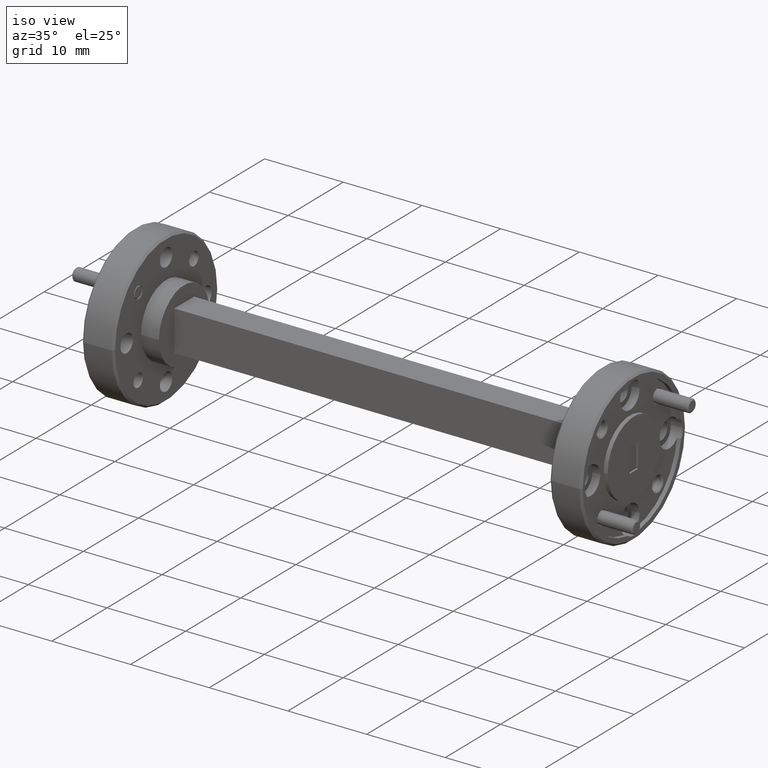
[diagram: clean part render]
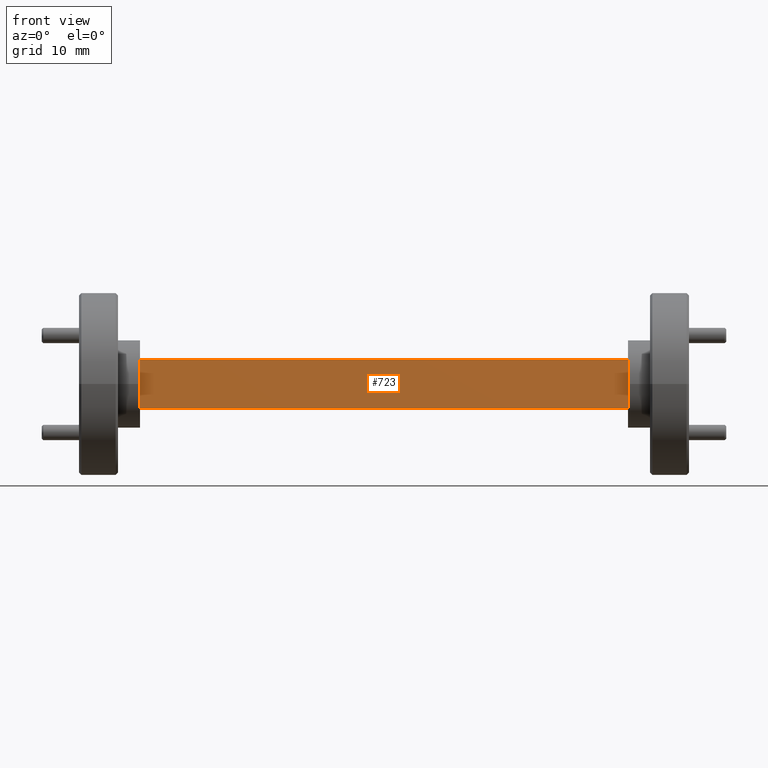
[diagram: tour spotlight — one face highlighted and labeled with its STEP entity id]
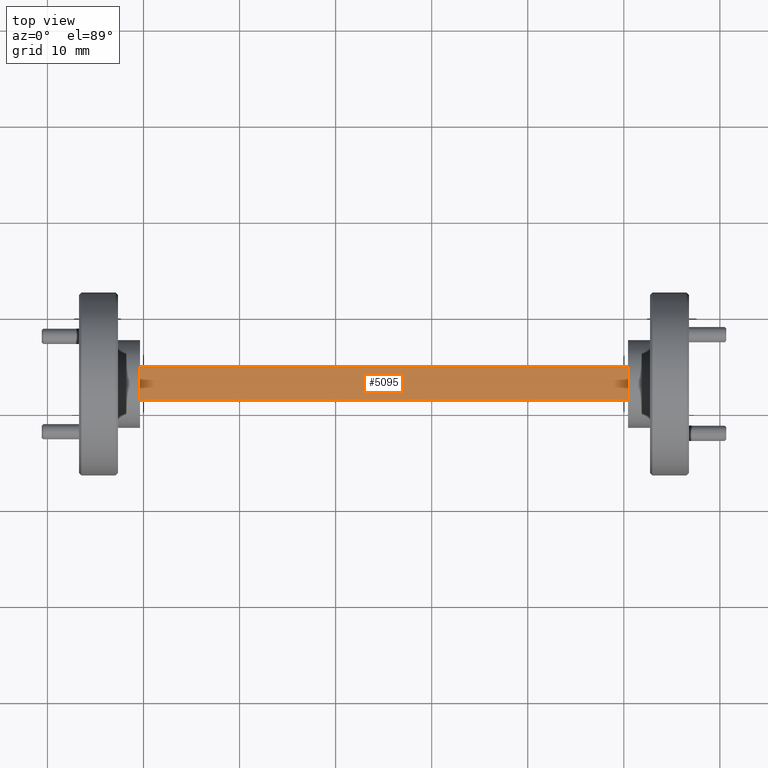
[diagram: tour spotlight — one face highlighted and labeled with its STEP entity id]
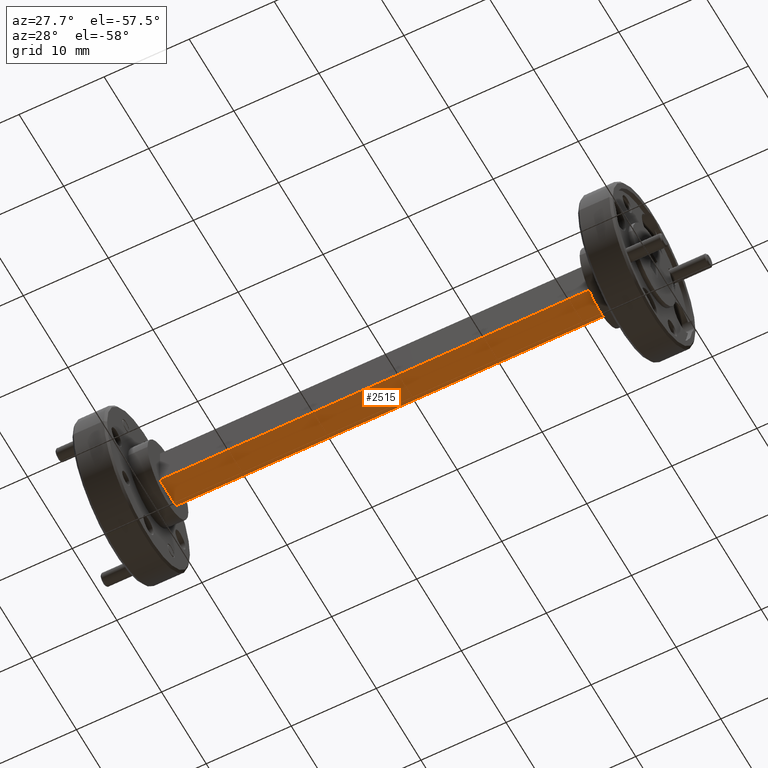
[diagram: tour spotlight — one face highlighted and labeled with its STEP entity id]
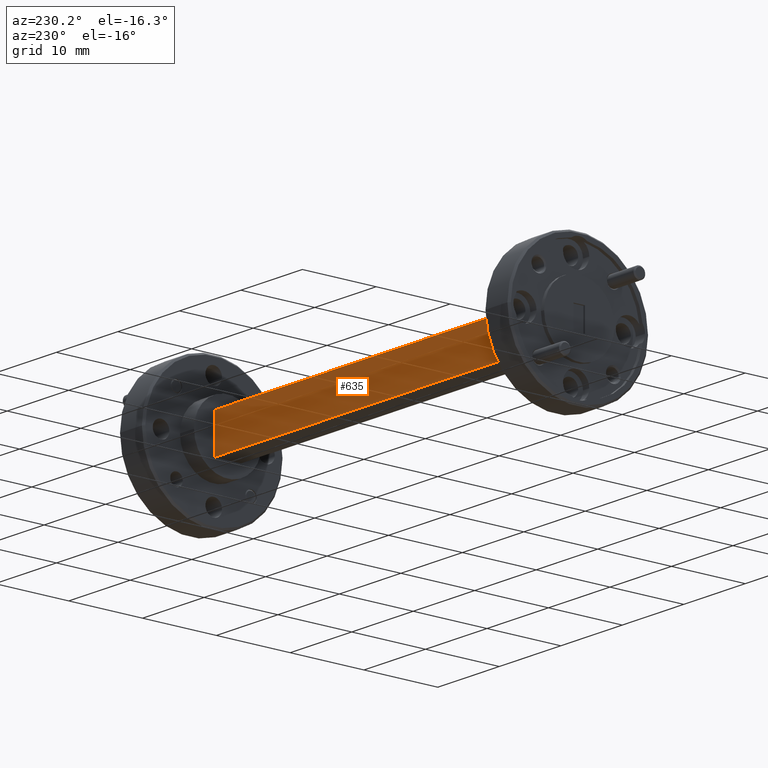
[diagram: tour spotlight — one face highlighted and labeled with its STEP entity id]
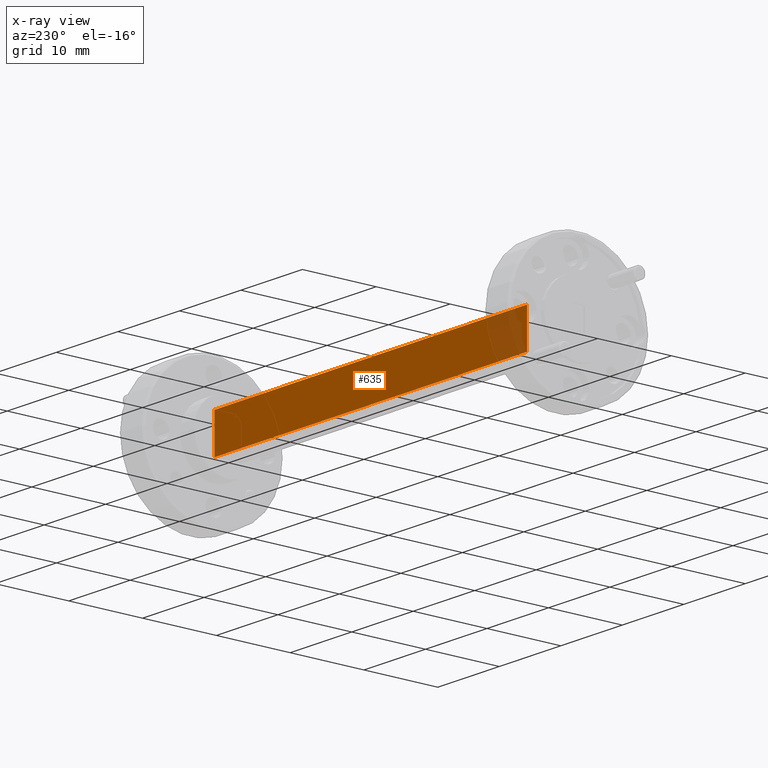
[diagram: x-ray of the same camera — body ghosted, this tour face saturated]
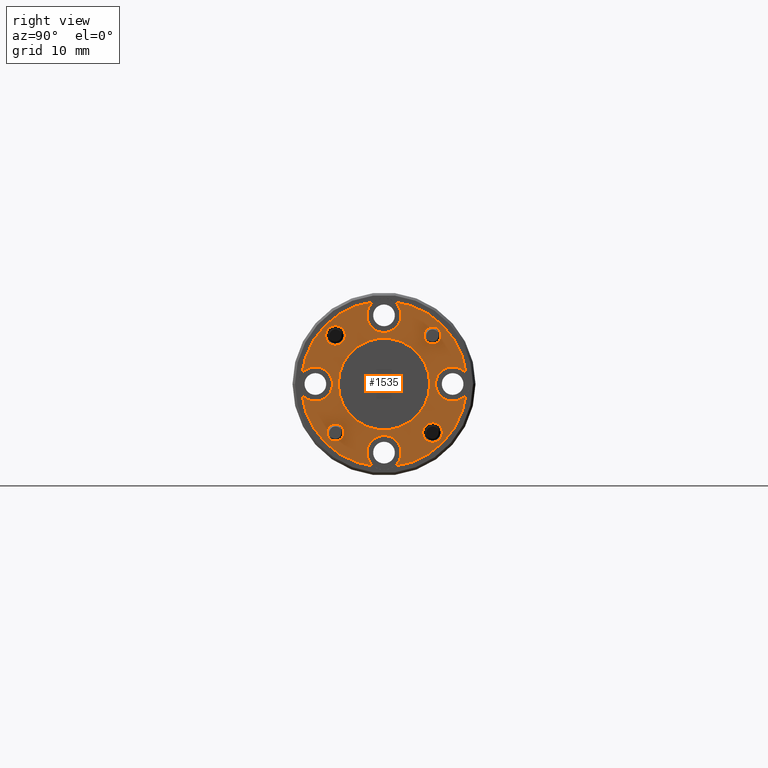
[diagram: tour spotlight — one face highlighted and labeled with its STEP entity id]
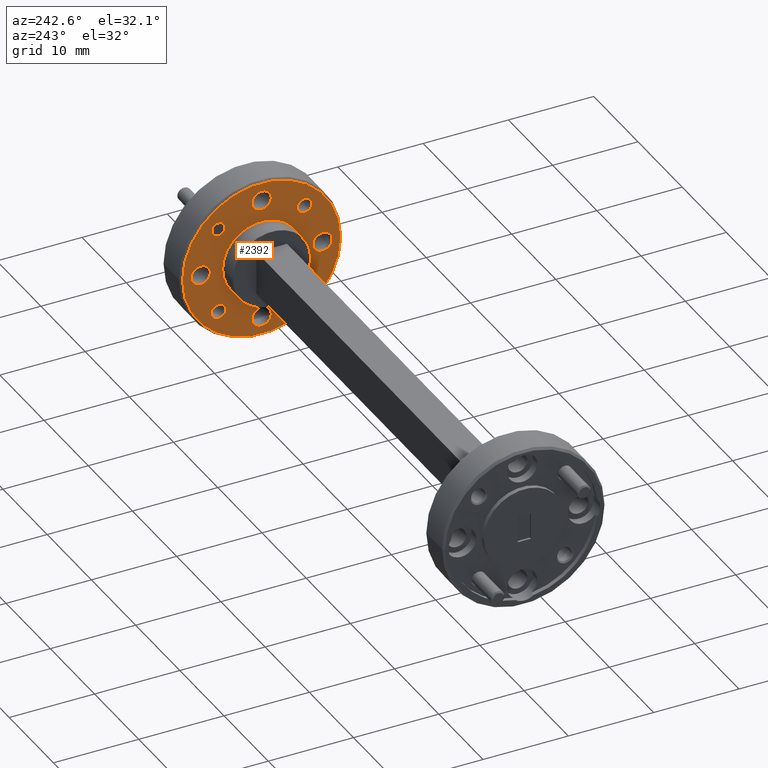
[diagram: tour spotlight — one face highlighted and labeled with its STEP entity id]
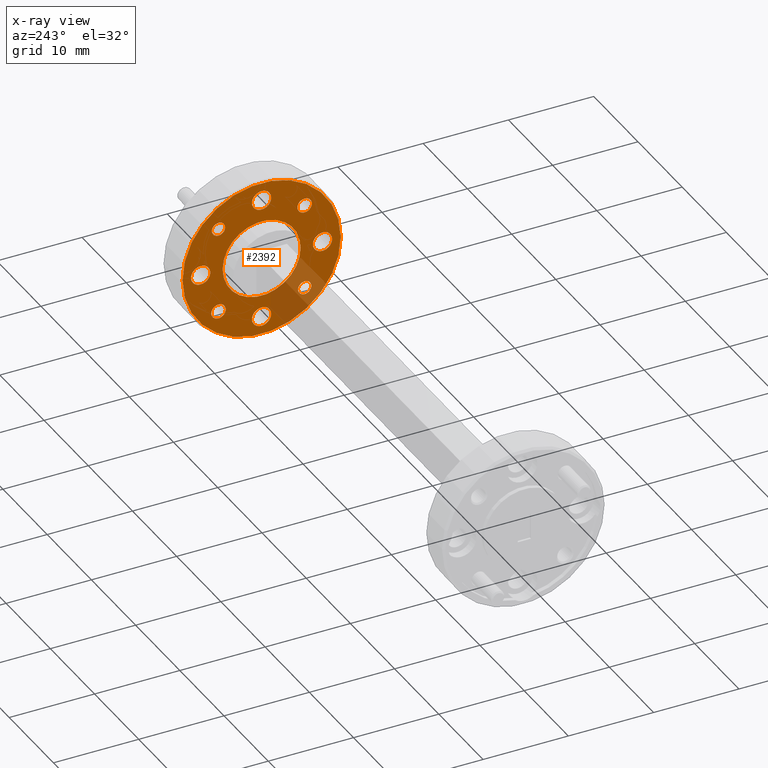
[diagram: x-ray of the same camera — body ghosted, this tour face saturated]
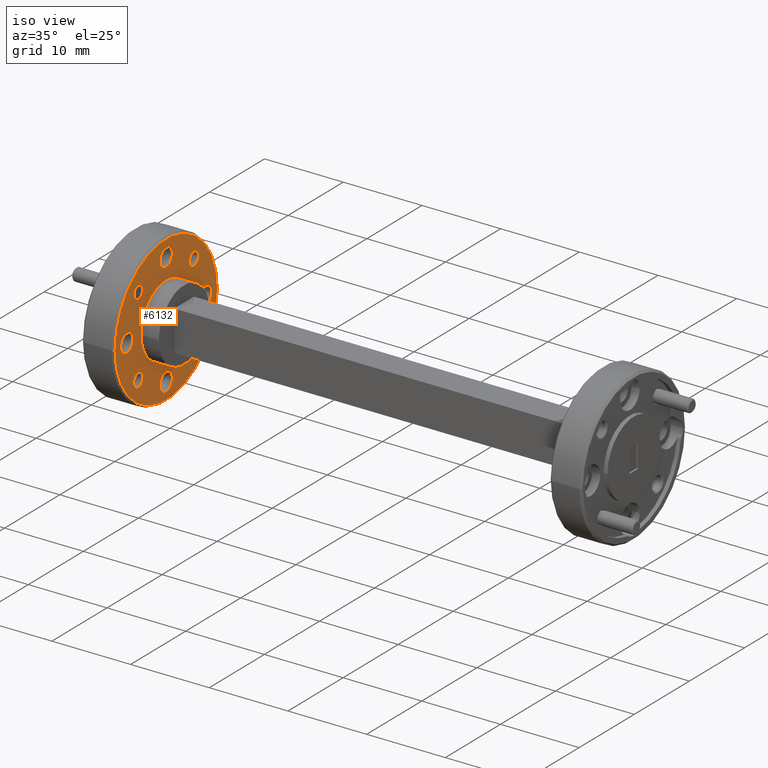
[diagram: tour spotlight — one face highlighted and labeled with its STEP entity id]
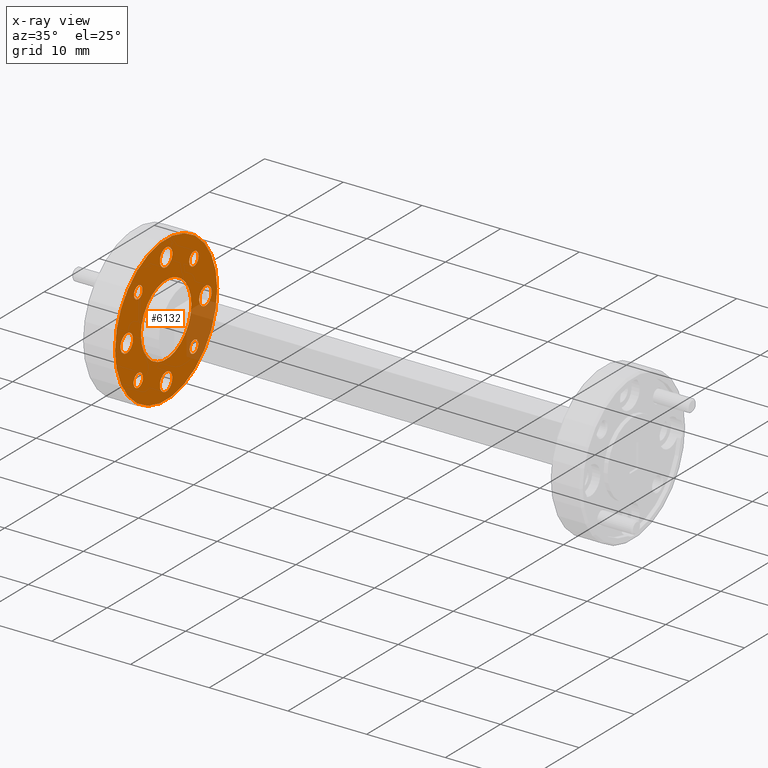
[diagram: x-ray of the same camera — body ghosted, this tour face saturated]
A machine part: a face-by-face anatomy tour. The part has 156 B-rep faces; the first image is the clean iso view, then the 7 largest visible faces are spotlighted one at a time (largest first), each with its STEP entity span.

Face 1 — front view, entity #723. In plain terms, the highlighted planar face has unit normal (0, -1, 0).
Definition (entity closure, byte-faithful):
#378 = VECTOR ( 'NONE', #1607, 39.37007874015748143 ) ;
#468 = CARTESIAN_POINT ( 'NONE',  ( -0.4080541153282570277, 2.019515889200941050, 2.985611598569148928 ) ) ;
#723 = ADVANCED_FACE ( 'NONE', ( #6085 ), #7181, .T. ) ;
#795 = VERTEX_POINT ( 'NONE', #2943 ) ;
#966 = DIRECTION ( 'NONE',  ( -1.000000000000000000, -8.537024980200822558E-18, 0.000000000000000000 ) ) ;
#997 = CARTESIAN_POINT ( 'NONE',  ( 1.591945884671743139, 2.019515889200941050, 2.783611598569149415 ) ) ;
#1029 = ORIENTED_EDGE ( 'NONE', *, *, #6921, .T. ) ;
#1500 = CARTESIAN_POINT ( 'NONE',  ( -0.4080541153282570277, 2.019515889200941050, 3.114611598569149375 ) ) ;
#1509 = DIRECTION ( 'NONE',  ( 0.000000000000000000, 0.000000000000000000, -1.000000000000000000 ) ) ;
#1541 = CARTESIAN_POINT ( 'NONE',  ( 1.591945884671743139, 2.019515889200941050, 3.114611598569149375 ) ) ;
#1546 = DIRECTION ( 'NONE',  ( 8.537024980200822558E-18, -1.000000000000000000, 0.000000000000000000 ) ) ;
#1607 = DIRECTION ( 'NONE',  ( 1.000000000000000000, 8.537024980200822558E-18, 0.000000000000000000 ) ) ;
#2832 = DIRECTION ( 'NONE',  ( 1.000000000000000000, 8.537024980200822558E-18, 0.000000000000000000 ) ) ;
#2943 = CARTESIAN_POINT ( 'NONE',  ( 1.591945884671743139, 2.019515889200941050, 2.985611598569148928 ) ) ;
#3159 = VECTOR ( 'NONE', #966, 39.37007874015748143 ) ;
#3246 = EDGE_CURVE ( 'NONE', #795, #3944, #5008, .T. ) ;
#3729 = ORIENTED_EDGE ( 'NONE', *, *, #3246, .F. ) ;
#3944 = VERTEX_POINT ( 'NONE', #997 ) ;
#4233 = VECTOR ( 'NONE', #1509, 39.37007874015748143 ) ;
#4247 = ORIENTED_EDGE ( 'NONE', *, *, #4572, .T. ) ;
#4510 = CARTESIAN_POINT ( 'NONE',  ( -0.4080541153282570277, 2.019515889200941050, 2.783611598569149415 ) ) ;
#4572 = EDGE_CURVE ( 'NONE', #795, #6475, #5017, .T. ) ;
#5008 = LINE ( 'NONE', #1541, #4233 ) ;
#5017 = LINE ( 'NONE', #6154, #3159 ) ;
#5019 = CARTESIAN_POINT ( 'NONE',  ( -0.4080541153282570277, 2.019515889200941050, 2.783611598569149415 ) ) ;
#5384 = AXIS2_PLACEMENT_3D ( 'NONE', #6727, #1546, #2832 ) ;
#6084 = ORIENTED_EDGE ( 'NONE', *, *, #6929, .T. ) ;
#6085 = FACE_OUTER_BOUND ( 'NONE', #6575, .T. ) ;
#6137 = LINE ( 'NONE', #4510, #378 ) ;
#6154 = CARTESIAN_POINT ( 'NONE',  ( -0.4080541153282570277, 2.019515889200941050, 2.985611598569148928 ) ) ;
#6293 = VECTOR ( 'NONE', #6746, 39.37007874015748143 ) ;
#6475 = VERTEX_POINT ( 'NONE', #468 ) ;
#6487 = VERTEX_POINT ( 'NONE', #5019 ) ;
#6575 = EDGE_LOOP ( 'NONE', ( #1029, #3729, #4247, #6084 ) ) ;
#6686 = LINE ( 'NONE', #1500, #6293 ) ;
#6727 = CARTESIAN_POINT ( 'NONE',  ( -0.4080541153282570277, 2.019515889200941050, 3.114611598569149375 ) ) ;
#6746 = DIRECTION ( 'NONE',  ( 0.000000000000000000, 0.000000000000000000, -1.000000000000000000 ) ) ;
#6921 = EDGE_CURVE ( 'NONE', #6487, #3944, #6137, .T. ) ;
#6929 = EDGE_CURVE ( 'NONE', #6475, #6487, #6686, .T. ) ;
#7181 = PLANE ( 'NONE',  #5384 ) ;

Face 2 — top view, entity #5095. In plain terms, the highlighted planar face has unit normal (0, 0, -1).
Definition (entity closure, byte-faithful):
#61 = DIRECTION ( 'NONE',  ( 1.000000000000000000, 8.537024980200822558E-18, 0.000000000000000000 ) ) ;
#317 = DIRECTION ( 'NONE',  ( 0.000000000000000000, 0.000000000000000000, -1.000000000000000000 ) ) ;
#407 = EDGE_CURVE ( 'NONE', #6475, #7102, #5177, .T. ) ;
#468 = CARTESIAN_POINT ( 'NONE',  ( -0.4080541153282570277, 2.019515889200941050, 2.985611598569148928 ) ) ;
#795 = VERTEX_POINT ( 'NONE', #2943 ) ;
#966 = DIRECTION ( 'NONE',  ( -1.000000000000000000, -8.537024980200822558E-18, 0.000000000000000000 ) ) ;
#982 = CARTESIAN_POINT ( 'NONE',  ( -0.4080541153282570277, 2.160515889200941064, 2.985611598569148928 ) ) ;
#1102 = CARTESIAN_POINT ( 'NONE',  ( 1.591945884671743139, 2.160515889200941064, 2.985611598569148928 ) ) ;
#1232 = ORIENTED_EDGE ( 'NONE', *, *, #3375, .T. ) ;
#1412 = ORIENTED_EDGE ( 'NONE', *, *, #5270, .F. ) ;
#1631 = VECTOR ( 'NONE', #6945, 39.37007874015748143 ) ;
#1648 = CARTESIAN_POINT ( 'NONE',  ( 1.591945884671743139, 1.715015889200941057, 2.985611598569148928 ) ) ;
#2044 = CARTESIAN_POINT ( 'NONE',  ( -0.4080541153282570277, 1.715015889200941057, 2.985611598569148928 ) ) ;
#2332 = CARTESIAN_POINT ( 'NONE',  ( -0.4080541153282570277, 1.715015889200941057, 2.985611598569148928 ) ) ;
#2478 = PLANE ( 'NONE',  #5122 ) ;
#2514 = ORIENTED_EDGE ( 'NONE', *, *, #407, .F. ) ;
#2524 = ORIENTED_EDGE ( 'NONE', *, *, #4572, .F. ) ;
#2620 = DIRECTION ( 'NONE',  ( -1.000000000000000000, 0.000000000000000000, -0.000000000000000000 ) ) ;
#2804 = CARTESIAN_POINT ( 'NONE',  ( -0.4080541153282570277, 2.160515889200941064, 2.985611598569148928 ) ) ;
#2943 = CARTESIAN_POINT ( 'NONE',  ( 1.591945884671743139, 2.019515889200941050, 2.985611598569148928 ) ) ;
#3159 = VECTOR ( 'NONE', #966, 39.37007874015748143 ) ;
#3375 = EDGE_CURVE ( 'NONE', #795, #4988, #6840, .T. ) ;
#3931 = DIRECTION ( 'NONE',  ( -0.000000000000000000, 1.000000000000000000, -0.000000000000000000 ) ) ;
#4572 = EDGE_CURVE ( 'NONE', #795, #6475, #5017, .T. ) ;
#4988 = VERTEX_POINT ( 'NONE', #1102 ) ;
#5017 = LINE ( 'NONE', #6154, #3159 ) ;
#5095 = ADVANCED_FACE ( 'NONE', ( #5359 ), #2478, .F. ) ;
#5122 = AXIS2_PLACEMENT_3D ( 'NONE', #2044, #317, #2620 ) ;
#5177 = LINE ( 'NONE', #2332, #1631 ) ;
#5270 = EDGE_CURVE ( 'NONE', #7102, #4988, #6177, .T. ) ;
#5359 = FACE_OUTER_BOUND ( 'NONE', #7349, .T. ) ;
#5665 = VECTOR ( 'NONE', #3931, 39.37007874015748143 ) ;
#6154 = CARTESIAN_POINT ( 'NONE',  ( -0.4080541153282570277, 2.019515889200941050, 2.985611598569148928 ) ) ;
#6177 = LINE ( 'NONE', #982, #6687 ) ;
#6475 = VERTEX_POINT ( 'NONE', #468 ) ;
#6687 = VECTOR ( 'NONE', #61, 39.37007874015748143 ) ;
#6840 = LINE ( 'NONE', #1648, #5665 ) ;
#6945 = DIRECTION ( 'NONE',  ( -0.000000000000000000, 1.000000000000000000, -0.000000000000000000 ) ) ;
#7102 = VERTEX_POINT ( 'NONE', #2804 ) ;
#7349 = EDGE_LOOP ( 'NONE', ( #2524, #1232, #1412, #2514 ) ) ;

Face 3 — auxiliary view, entity #2515. In plain terms, the highlighted planar face has unit normal (-0, 0, 1).
Definition (entity closure, byte-faithful):
#93 = FACE_OUTER_BOUND ( 'NONE', #2192, .T. ) ;
#378 = VECTOR ( 'NONE', #1607, 39.37007874015748143 ) ;
#997 = CARTESIAN_POINT ( 'NONE',  ( 1.591945884671743139, 2.019515889200941050, 2.783611598569149415 ) ) ;
#1181 = LINE ( 'NONE', #7478, #6660 ) ;
#1376 = ORIENTED_EDGE ( 'NONE', *, *, #6921, .F. ) ;
#1410 = CARTESIAN_POINT ( 'NONE',  ( -0.4080541153282570277, 2.160515889200941064, 2.783611598569149415 ) ) ;
#1548 = DIRECTION ( 'NONE',  ( -0.000000000000000000, 1.000000000000000000, -0.000000000000000000 ) ) ;
#1607 = DIRECTION ( 'NONE',  ( 1.000000000000000000, 8.537024980200822558E-18, 0.000000000000000000 ) ) ;
#2124 = CARTESIAN_POINT ( 'NONE',  ( 1.591945884671743139, 1.715015889200941057, 2.783611598569149415 ) ) ;
#2192 = EDGE_LOOP ( 'NONE', ( #1376, #3155, #3324, #6658 ) ) ;
#2441 = AXIS2_PLACEMENT_3D ( 'NONE', #7002, #4035, #6339 ) ;
#2499 = DIRECTION ( 'NONE',  ( -0.000000000000000000, 1.000000000000000000, -0.000000000000000000 ) ) ;
#2515 = ADVANCED_FACE ( 'NONE', ( #93 ), #6895, .F. ) ;
#2883 = DIRECTION ( 'NONE',  ( -1.000000000000000000, -8.537024980200822558E-18, 0.000000000000000000 ) ) ;
#3155 = ORIENTED_EDGE ( 'NONE', *, *, #6018, .T. ) ;
#3177 = VERTEX_POINT ( 'NONE', #3771 ) ;
#3324 = ORIENTED_EDGE ( 'NONE', *, *, #6308, .F. ) ;
#3613 = CARTESIAN_POINT ( 'NONE',  ( -0.4080541153282570277, 1.715015889200941057, 2.783611598569149415 ) ) ;
#3771 = CARTESIAN_POINT ( 'NONE',  ( 1.591945884671743139, 2.160515889200941064, 2.783611598569149415 ) ) ;
#3944 = VERTEX_POINT ( 'NONE', #997 ) ;
#4035 = DIRECTION ( 'NONE',  ( -0.000000000000000000, 0.000000000000000000, 1.000000000000000000 ) ) ;
#4510 = CARTESIAN_POINT ( 'NONE',  ( -0.4080541153282570277, 2.019515889200941050, 2.783611598569149415 ) ) ;
#4557 = EDGE_CURVE ( 'NONE', #3944, #3177, #5556, .T. ) ;
#5019 = CARTESIAN_POINT ( 'NONE',  ( -0.4080541153282570277, 2.019515889200941050, 2.783611598569149415 ) ) ;
#5556 = LINE ( 'NONE', #2124, #6439 ) ;
#6018 = EDGE_CURVE ( 'NONE', #6487, #7368, #7249, .T. ) ;
#6137 = LINE ( 'NONE', #4510, #378 ) ;
#6308 = EDGE_CURVE ( 'NONE', #3177, #7368, #1181, .T. ) ;
#6339 = DIRECTION ( 'NONE',  ( 1.000000000000000000, 0.000000000000000000, 0.000000000000000000 ) ) ;
#6439 = VECTOR ( 'NONE', #1548, 39.37007874015748143 ) ;
#6487 = VERTEX_POINT ( 'NONE', #5019 ) ;
#6524 = VECTOR ( 'NONE', #2499, 39.37007874015748143 ) ;
#6658 = ORIENTED_EDGE ( 'NONE', *, *, #4557, .F. ) ;
#6660 = VECTOR ( 'NONE', #2883, 39.37007874015748143 ) ;
#6895 = PLANE ( 'NONE',  #2441 ) ;
#6921 = EDGE_CURVE ( 'NONE', #6487, #3944, #6137, .T. ) ;
#7002 = CARTESIAN_POINT ( 'NONE',  ( -0.4080541153282570277, 1.715015889200941057, 2.783611598569149415 ) ) ;
#7249 = LINE ( 'NONE', #3613, #6524 ) ;
#7368 = VERTEX_POINT ( 'NONE', #1410 ) ;
#7478 = CARTESIAN_POINT ( 'NONE',  ( -0.4080541153282570277, 2.160515889200941064, 2.783611598569149415 ) ) ;

Face 4 — auxiliary view, entity #635. An x-ray twin of the same camera follows (body ghosted, this face saturated) — the face is partly hidden behind the body. In plain terms, the highlighted planar face has unit normal (-0, 1, 0).
Definition (entity closure, byte-faithful):
#61 = DIRECTION ( 'NONE',  ( 1.000000000000000000, 8.537024980200822558E-18, 0.000000000000000000 ) ) ;
#97 = DIRECTION ( 'NONE',  ( 0.000000000000000000, 0.000000000000000000, -1.000000000000000000 ) ) ;
#635 = ADVANCED_FACE ( 'NONE', ( #726 ), #6296, .T. ) ;
#690 = CARTESIAN_POINT ( 'NONE',  ( -0.4080541153282570277, 2.160515889200941064, 3.114611598569149375 ) ) ;
#697 = ORIENTED_EDGE ( 'NONE', *, *, #4956, .T. ) ;
#726 = FACE_OUTER_BOUND ( 'NONE', #4805, .T. ) ;
#854 = ORIENTED_EDGE ( 'NONE', *, *, #6308, .T. ) ;
#982 = CARTESIAN_POINT ( 'NONE',  ( -0.4080541153282570277, 2.160515889200941064, 2.985611598569148928 ) ) ;
#1102 = CARTESIAN_POINT ( 'NONE',  ( 1.591945884671743139, 2.160515889200941064, 2.985611598569148928 ) ) ;
#1179 = LINE ( 'NONE', #6971, #1616 ) ;
#1181 = LINE ( 'NONE', #7478, #6660 ) ;
#1410 = CARTESIAN_POINT ( 'NONE',  ( -0.4080541153282570277, 2.160515889200941064, 2.783611598569149415 ) ) ;
#1505 = ORIENTED_EDGE ( 'NONE', *, *, #5262, .F. ) ;
#1616 = VECTOR ( 'NONE', #97, 39.37007874015748143 ) ;
#1639 = DIRECTION ( 'NONE',  ( -1.000000000000000000, -8.537024980200822558E-18, 0.000000000000000000 ) ) ;
#2051 = CARTESIAN_POINT ( 'NONE',  ( -0.4080541153282570277, 2.160515889200941064, 3.114611598569149375 ) ) ;
#2322 = ORIENTED_EDGE ( 'NONE', *, *, #5270, .T. ) ;
#2804 = CARTESIAN_POINT ( 'NONE',  ( -0.4080541153282570277, 2.160515889200941064, 2.985611598569148928 ) ) ;
#2883 = DIRECTION ( 'NONE',  ( -1.000000000000000000, -8.537024980200822558E-18, 0.000000000000000000 ) ) ;
#3177 = VERTEX_POINT ( 'NONE', #3771 ) ;
#3400 = VECTOR ( 'NONE', #3877, 39.37007874015748143 ) ;
#3771 = CARTESIAN_POINT ( 'NONE',  ( 1.591945884671743139, 2.160515889200941064, 2.783611598569149415 ) ) ;
#3877 = DIRECTION ( 'NONE',  ( 0.000000000000000000, 0.000000000000000000, -1.000000000000000000 ) ) ;
#3929 = AXIS2_PLACEMENT_3D ( 'NONE', #690, #7073, #1639 ) ;
#4805 = EDGE_LOOP ( 'NONE', ( #854, #1505, #2322, #697 ) ) ;
#4956 = EDGE_CURVE ( 'NONE', #4988, #3177, #1179, .T. ) ;
#4988 = VERTEX_POINT ( 'NONE', #1102 ) ;
#5262 = EDGE_CURVE ( 'NONE', #7102, #7368, #7319, .T. ) ;
#5270 = EDGE_CURVE ( 'NONE', #7102, #4988, #6177, .T. ) ;
#6177 = LINE ( 'NONE', #982, #6687 ) ;
#6296 = PLANE ( 'NONE',  #3929 ) ;
#6308 = EDGE_CURVE ( 'NONE', #3177, #7368, #1181, .T. ) ;
#6660 = VECTOR ( 'NONE', #2883, 39.37007874015748143 ) ;
#6687 = VECTOR ( 'NONE', #61, 39.37007874015748143 ) ;
#6971 = CARTESIAN_POINT ( 'NONE',  ( 1.591945884671743139, 2.160515889200941064, 3.114611598569149375 ) ) ;
#7073 = DIRECTION ( 'NONE',  ( -8.537024980200822558E-18, 1.000000000000000000, 0.000000000000000000 ) ) ;
#7102 = VERTEX_POINT ( 'NONE', #2804 ) ;
#7319 = LINE ( 'NONE', #2051, #3400 ) ;
#7368 = VERTEX_POINT ( 'NONE', #1410 ) ;
#7478 = CARTESIAN_POINT ( 'NONE',  ( -0.4080541153282570277, 2.160515889200941064, 2.783611598569149415 ) ) ;

Face 5 — right view, entity #1535. In plain terms, the highlighted planar face has unit normal (1, 0, -0).
Definition (entity closure, byte-faithful):
#8 = CIRCLE ( 'NONE', #2898, 0.07000000000000007605 ) ;
#45 = CARTESIAN_POINT ( 'NONE',  ( 1.821945884671743787, 1.808765889200941279, 2.884611598569149393 ) ) ;
#70 = CIRCLE ( 'NONE', #193, 0.3399999999999996358 ) ;
#109 = CARTESIAN_POINT ( 'NONE',  ( 1.821945884671743787, 2.090015889200941057, 2.603361598569148949 ) ) ;
#128 = ORIENTED_EDGE ( 'NONE', *, *, #2046, .F. ) ;
#143 = CARTESIAN_POINT ( 'NONE',  ( 1.821945884671743787, 2.131781537465993193, 3.222036598569148591 ) ) ;
#180 = CARTESIAN_POINT ( 'NONE',  ( 1.821945884671743787, 2.427440889200941143, 2.926377246834200641 ) ) ;
#193 = AXIS2_PLACEMENT_3D ( 'NONE', #5963, #808, #3109 ) ;
#210 = DIRECTION ( 'NONE',  ( 0.000000000000000000, 0.000000000000000000, -1.000000000000000000 ) ) ;
#239 = CIRCLE ( 'NONE', #5786, 0.07000000000000007605 ) ;
#266 = VERTEX_POINT ( 'NONE', #3906 ) ;
#330 = CARTESIAN_POINT ( 'NONE',  ( 1.821945884671743787, 2.090015889200941057, 3.165861598569149393 ) ) ;
#415 = CARTESIAN_POINT ( 'NONE',  ( 1.821945884671743787, 1.902515889200941723, 2.884611598569149393 ) ) ;
#431 = VERTEX_POINT ( 'NONE', #2970 ) ;
#447 = CARTESIAN_POINT ( 'NONE',  ( 1.821945884671743787, 1.891142106992224514, 3.083485380777865270 ) ) ;
#453 = VERTEX_POINT ( 'NONE', #2559 ) ;
#466 = EDGE_CURVE ( 'NONE', #3572, #431, #1259, .T. ) ;
#520 = AXIS2_PLACEMENT_3D ( 'NONE', #5308, #4765, #7046 ) ;
#521 = DIRECTION ( 'NONE',  ( 1.000000000000000000, 1.224646799147353454E-16, -0.000000000000000000 ) ) ;
#523 = DIRECTION ( 'NONE',  ( 1.000000000000000000, 1.224646799147353454E-16, -0.000000000000000000 ) ) ;
#547 = PLANE ( 'NONE',  #2391 ) ;
#553 = EDGE_CURVE ( 'NONE', #266, #1763, #70, .T. ) ;
#565 = VERTEX_POINT ( 'NONE', #180 ) ;
#580 = CARTESIAN_POINT ( 'NONE',  ( 1.821945884671743787, 2.131781537465993193, 2.547186598569149751 ) ) ;
#593 = EDGE_CURVE ( 'NONE', #5138, #1475, #677, .T. ) ;
#605 = CARTESIAN_POINT ( 'NONE',  ( 1.821945884671743787, 1.891142106992224514, 3.123485380777865306 ) ) ;
#677 = CIRCLE ( 'NONE', #5386, 0.04000000000000011879 ) ;
#698 = CARTESIAN_POINT ( 'NONE',  ( 1.821945884671743787, 2.090015889200941057, 2.884611598569149393 ) ) ;
#756 = CARTESIAN_POINT ( 'NONE',  ( 1.821945884671743787, 2.020015889200941217, 2.603361598569148949 ) ) ;
#784 = CARTESIAN_POINT ( 'NONE',  ( 1.821945884671743787, 2.048250240935888922, 3.222036598569148591 ) ) ;
#789 = VERTEX_POINT ( 'NONE', #3490 ) ;
#808 = DIRECTION ( 'NONE',  ( 1.000000000000000000, 1.224646799147353454E-16, -0.000000000000000000 ) ) ;
#903 = DIRECTION ( 'NONE',  ( 0.000000000000000000, 1.000000000000000000, 0.000000000000000000 ) ) ;
#920 = CARTESIAN_POINT ( 'NONE',  ( 1.821945884671743787, 2.288889671409658266, 2.685737816360433072 ) ) ;
#945 = AXIS2_PLACEMENT_3D ( 'NONE', #920, #3306, #1647 ) ;
#957 = DIRECTION ( 'NONE',  ( 0.000000000000000000, 1.000000000000000000, 0.000000000000000000 ) ) ;
#970 = CIRCLE ( 'NONE', #520, 0.07000000000000007605 ) ;
#1013 = CARTESIAN_POINT ( 'NONE',  ( 1.821945884671743787, 2.277515889200940613, 2.884611598569149393 ) ) ;
#1017 = ORIENTED_EDGE ( 'NONE', *, *, #466, .T. ) ;
#1018 = CARTESIAN_POINT ( 'NONE',  ( 1.821945884671743787, 2.288889671409658266, 2.725737816360433552 ) ) ;
#1050 = CARTESIAN_POINT ( 'NONE',  ( 1.821945884671743787, 2.090015889200941057, 2.884611598569149393 ) ) ;
#1165 = AXIS2_PLACEMENT_3D ( 'NONE', #698, #1175, #4213 ) ;
#1175 = DIRECTION ( 'NONE',  ( 1.000000000000000000, 1.224646799147353454E-16, -0.000000000000000000 ) ) ;
#1177 = ORIENTED_EDGE ( 'NONE', *, *, #4294, .F. ) ;
#1222 = AXIS2_PLACEMENT_3D ( 'NONE', #109, #5853, #2947 ) ;
#1250 = ORIENTED_EDGE ( 'NONE', *, *, #7091, .F. ) ;
#1259 = CIRCLE ( 'NONE', #3806, 0.3399999999999996358 ) ;
#1387 = EDGE_CURVE ( 'NONE', #6982, #789, #6489, .T. ) ;
#1416 = AXIS2_PLACEMENT_3D ( 'NONE', #6095, #4867, #903 ) ;
#1444 = VERTEX_POINT ( 'NONE', #2615 ) ;
#1475 = VERTEX_POINT ( 'NONE', #4985 ) ;
#1478 = EDGE_CURVE ( 'NONE', #6563, #4230, #3200, .T. ) ;
#1531 = CARTESIAN_POINT ( 'NONE',  ( 1.821945884671743787, 2.090015889200941057, 2.884611598569149393 ) ) ;
#1535 = ADVANCED_FACE ( 'NONE', ( #7343, #4573, #2202, #6327, #2761, #1594 ), #547, .T. ) ;
#1581 = AXIS2_PLACEMENT_3D ( 'NONE', #2263, #6750, #4595 ) ;
#1586 = VERTEX_POINT ( 'NONE', #6775 ) ;
#1594 = FACE_BOUND ( 'NONE', #4976, .T. ) ;
#1604 = DIRECTION ( 'NONE',  ( 1.000000000000000000, 1.224646799147353454E-16, -0.000000000000000000 ) ) ;
#1634 = ORIENTED_EDGE ( 'NONE', *, *, #2641, .F. ) ;
#1647 = DIRECTION ( 'NONE',  ( 0.000000000000000000, 0.000000000000000000, -1.000000000000000000 ) ) ;
#1669 = DIRECTION ( 'NONE',  ( 0.000000000000000000, 1.000000000000000000, 0.000000000000000000 ) ) ;
#1680 = EDGE_CURVE ( 'NONE', #1444, #431, #3815, .T. ) ;
#1763 = VERTEX_POINT ( 'NONE', #2459 ) ;
#1790 = AXIS2_PLACEMENT_3D ( 'NONE', #4843, #3153, #4352 ) ;
#1802 = VERTEX_POINT ( 'NONE', #5449 ) ;
#1812 = CIRCLE ( 'NONE', #2410, 0.04000000000000011879 ) ;
#1915 = EDGE_CURVE ( 'NONE', #453, #1586, #4735, .T. ) ;
#2008 = ORIENTED_EDGE ( 'NONE', *, *, #6035, .F. ) ;
#2012 = EDGE_LOOP ( 'NONE', ( #1250, #3073 ) ) ;
#2046 = EDGE_CURVE ( 'NONE', #1802, #5079, #2556, .T. ) ;
#2053 = CIRCLE ( 'NONE', #4634, 0.07000000000000007605 ) ;
#2067 = AXIS2_PLACEMENT_3D ( 'NONE', #4258, #6593, #3133 ) ;
#2079 = CIRCLE ( 'NONE', #5698, 0.3399999999999996358 ) ;
#2202 = FACE_BOUND ( 'NONE', #7272, .T. ) ;
#2209 = ORIENTED_EDGE ( 'NONE', *, *, #2567, .F. ) ;
#2244 = VERTEX_POINT ( 'NONE', #4428 ) ;
#2250 = EDGE_CURVE ( 'NONE', #789, #6982, #5195, .T. ) ;
#2263 = CARTESIAN_POINT ( 'NONE',  ( 1.821945884671743787, 1.891142106992224514, 2.685737816360433072 ) ) ;
#2295 = CIRCLE ( 'NONE', #7369, 0.03500000000000003803 ) ;
#2334 = EDGE_CURVE ( 'NONE', #1586, #5163, #239, .T. ) ;
#2391 = AXIS2_PLACEMENT_3D ( 'NONE', #1013, #3351, #4609 ) ;
#2410 = AXIS2_PLACEMENT_3D ( 'NONE', #5613, #6106, #5541 ) ;
#2414 = EDGE_CURVE ( 'NONE', #6214, #1763, #7232, .T. ) ;
#2420 = ORIENTED_EDGE ( 'NONE', *, *, #2250, .F. ) ;
#2459 = CARTESIAN_POINT ( 'NONE',  ( 1.821945884671743787, 2.048250240935889810, 2.547186598569149751 ) ) ;
#2535 = CIRCLE ( 'NONE', #6759, 0.3399999999999996358 ) ;
#2556 = CIRCLE ( 'NONE', #1581, 0.03500000000000003803 ) ;
#2559 = CARTESIAN_POINT ( 'NONE',  ( 1.821945884671743787, 2.020015889200941217, 3.165861598569149393 ) ) ;
#2567 = EDGE_CURVE ( 'NONE', #5079, #1802, #4134, .T. ) ;
#2574 = DIRECTION ( 'NONE',  ( 1.000000000000000000, 1.224646799147353454E-16, -0.000000000000000000 ) ) ;
#2607 = ORIENTED_EDGE ( 'NONE', *, *, #2414, .F. ) ;
#2615 = CARTESIAN_POINT ( 'NONE',  ( 1.821945884671743787, 1.878765889200941341, 2.884611598569149393 ) ) ;
#2618 = ORIENTED_EDGE ( 'NONE', *, *, #4932, .F. ) ;
#2641 = EDGE_CURVE ( 'NONE', #565, #5026, #970, .T. ) ;
#2671 = AXIS2_PLACEMENT_3D ( 'NONE', #5023, #6731, #3279 ) ;
#2695 = CIRCLE ( 'NONE', #5822, 0.04000000000000011879 ) ;
#2726 = CARTESIAN_POINT ( 'NONE',  ( 1.821945884671743787, 2.160015889200941341, 2.603361598569148949 ) ) ;
#2734 = DIRECTION ( 'NONE',  ( 0.000000000000000000, 0.000000000000000000, -1.000000000000000000 ) ) ;
#2751 = DIRECTION ( 'NONE',  ( 1.000000000000000000, -0.000000000000000000, -0.000000000000000000 ) ) ;
#2761 = FACE_BOUND ( 'NONE', #5307, .T. ) ;
#2805 = ORIENTED_EDGE ( 'NONE', *, *, #5010, .F. ) ;
#2898 = AXIS2_PLACEMENT_3D ( 'NONE', #4851, #2574, #7135 ) ;
#2924 = CIRCLE ( 'NONE', #1222, 0.07000000000000007605 ) ;
#2947 = DIRECTION ( 'NONE',  ( 0.000000000000000000, 1.000000000000000000, 0.000000000000000000 ) ) ;
#2970 = CARTESIAN_POINT ( 'NONE',  ( 1.821945884671743787, 1.752590889200941859, 2.926377246834201529 ) ) ;
#2983 = ORIENTED_EDGE ( 'NONE', *, *, #1915, .F. ) ;
#3004 = CARTESIAN_POINT ( 'NONE',  ( 1.821945884671743787, 2.090015889200941057, 2.884611598569149393 ) ) ;
#3040 = ORIENTED_EDGE ( 'NONE', *, *, #553, .T. ) ;
#3061 = AXIS2_PLACEMENT_3D ( 'NONE', #5682, #521, #4958 ) ;
#3073 = ORIENTED_EDGE ( 'NONE', *, *, #3439, .F. ) ;
#3105 = CARTESIAN_POINT ( 'NONE',  ( 1.821945884671743787, 2.301265889200941217, 2.884611598569149393 ) ) ;
#3109 = DIRECTION ( 'NONE',  ( 0.000000000000000000, 1.000000000000000000, 0.000000000000000000 ) ) ;
#3133 = DIRECTION ( 'NONE',  ( 0.000000000000000000, 0.000000000000000000, -1.000000000000000000 ) ) ;
#3153 = DIRECTION ( 'NONE',  ( 1.000000000000000000, 1.224646799147353454E-16, -0.000000000000000000 ) ) ;
#3169 = DIRECTION ( 'NONE',  ( 1.000000000000000000, 1.224646799147353454E-16, -0.000000000000000000 ) ) ;
#3200 = CIRCLE ( 'NONE', #1416, 0.07000000000000007605 ) ;
#3279 = DIRECTION ( 'NONE',  ( 0.000000000000000000, 0.000000000000000000, -1.000000000000000000 ) ) ;
#3306 = DIRECTION ( 'NONE',  ( 1.000000000000000000, -0.000000000000000000, -0.000000000000000000 ) ) ;
#3337 = DIRECTION ( 'NONE',  ( 0.000000000000000000, 1.000000000000000000, 0.000000000000000000 ) ) ;
#3351 = DIRECTION ( 'NONE',  ( 1.000000000000000000, 1.224646799147353454E-16, -0.000000000000000000 ) ) ;
#3436 = EDGE_LOOP ( 'NONE', ( #2805, #4160 ) ) ;
#3438 = CARTESIAN_POINT ( 'NONE',  ( 1.821945884671743787, 1.891142106992224514, 3.083485380777865270 ) ) ;
#3439 = EDGE_CURVE ( 'NONE', #5231, #4858, #2295, .T. ) ;
#3490 = CARTESIAN_POINT ( 'NONE',  ( 1.821945884671743787, 2.277515889200940613, 2.884611598569149393 ) ) ;
#3532 = ORIENTED_EDGE ( 'NONE', *, *, #6584, .F. ) ;
#3572 = VERTEX_POINT ( 'NONE', #784 ) ;
#3575 = DIRECTION ( 'NONE',  ( 1.000000000000000000, 1.224646799147353454E-16, -0.000000000000000000 ) ) ;
#3579 = ORIENTED_EDGE ( 'NONE', *, *, #1680, .F. ) ;
#3637 = CARTESIAN_POINT ( 'NONE',  ( 1.821945884671743787, 1.891142106992224514, 2.650737816360433374 ) ) ;
#3752 = CIRCLE ( 'NONE', #2671, 0.03500000000000003803 ) ;
#3806 = AXIS2_PLACEMENT_3D ( 'NONE', #3004, #4340, #4190 ) ;
#3815 = CIRCLE ( 'NONE', #6713, 0.07000000000000007605 ) ;
#3850 = ORIENTED_EDGE ( 'NONE', *, *, #6624, .T. ) ;
#3860 = AXIS2_PLACEMENT_3D ( 'NONE', #1531, #4837, #7120 ) ;
#3906 = CARTESIAN_POINT ( 'NONE',  ( 1.821945884671743787, 1.752590889200941859, 2.842845950304097258 ) ) ;
#4032 = VERTEX_POINT ( 'NONE', #1018 ) ;
#4134 = CIRCLE ( 'NONE', #2067, 0.03500000000000003803 ) ;
#4160 = ORIENTED_EDGE ( 'NONE', *, *, #593, .F. ) ;
#4190 = DIRECTION ( 'NONE',  ( 0.000000000000000000, 1.000000000000000000, 0.000000000000000000 ) ) ;
#4208 = EDGE_CURVE ( 'NONE', #565, #5163, #2079, .T. ) ;
#4213 = DIRECTION ( 'NONE',  ( 0.000000000000000000, 1.000000000000000000, 0.000000000000000000 ) ) ;
#4230 = VERTEX_POINT ( 'NONE', #2726 ) ;
#4231 = CIRCLE ( 'NONE', #945, 0.04000000000000011879 ) ;
#4253 = CARTESIAN_POINT ( 'NONE',  ( 1.821945884671743787, 2.090015889200941057, 2.884611598569149393 ) ) ;
#4258 = CARTESIAN_POINT ( 'NONE',  ( 1.821945884671743787, 1.891142106992224514, 2.685737816360433072 ) ) ;
#4294 = EDGE_CURVE ( 'NONE', #4230, #6214, #2924, .T. ) ;
#4340 = DIRECTION ( 'NONE',  ( 1.000000000000000000, 1.224646799147353454E-16, -0.000000000000000000 ) ) ;
#4352 = DIRECTION ( 'NONE',  ( 0.000000000000000000, 1.000000000000000000, 0.000000000000000000 ) ) ;
#4428 = CARTESIAN_POINT ( 'NONE',  ( 1.821945884671743787, 2.427440889200941143, 2.842845950304097702 ) ) ;
#4498 = ORIENTED_EDGE ( 'NONE', *, *, #2334, .F. ) ;
#4554 = DIRECTION ( 'NONE',  ( 1.000000000000000000, 1.224646799147353454E-16, -0.000000000000000000 ) ) ;
#4573 = FACE_BOUND ( 'NONE', #3436, .T. ) ;
#4595 = DIRECTION ( 'NONE',  ( 0.000000000000000000, 0.000000000000000000, -1.000000000000000000 ) ) ;
#4609 = DIRECTION ( 'NONE',  ( -1.224646799147353454E-16, 1.000000000000000000, 0.000000000000000000 ) ) ;
#4634 = AXIS2_PLACEMENT_3D ( 'NONE', #5115, #6147, #957 ) ;
#4668 = CIRCLE ( 'NONE', #3061, 0.07000000000000007605 ) ;
#4735 = CIRCLE ( 'NONE', #5800, 0.07000000000000007605 ) ;
#4765 = DIRECTION ( 'NONE',  ( 1.000000000000000000, 1.224646799147353454E-16, -0.000000000000000000 ) ) ;
#4837 = DIRECTION ( 'NONE',  ( 1.000000000000000000, 1.224646799147353454E-16, -0.000000000000000000 ) ) ;
#4843 = CARTESIAN_POINT ( 'NONE',  ( 1.821945884671743787, 2.090015889200941057, 2.603361598569148949 ) ) ;
#4851 = CARTESIAN_POINT ( 'NONE',  ( 1.821945884671743787, 2.371265889200941057, 2.884611598569149393 ) ) ;
#4858 = VERTEX_POINT ( 'NONE', #5966 ) ;
#4867 = DIRECTION ( 'NONE',  ( 1.000000000000000000, 1.224646799147353454E-16, -0.000000000000000000 ) ) ;
#4932 = EDGE_CURVE ( 'NONE', #266, #1444, #4668, .T. ) ;
#4958 = DIRECTION ( 'NONE',  ( 0.000000000000000000, 1.000000000000000000, 0.000000000000000000 ) ) ;
#4976 = EDGE_LOOP ( 'NONE', ( #2420, #6109 ) ) ;
#4985 = CARTESIAN_POINT ( 'NONE',  ( 1.821945884671743787, 1.891142106992224514, 3.043485380777865235 ) ) ;
#5010 = EDGE_CURVE ( 'NONE', #1475, #5138, #2695, .T. ) ;
#5023 = CARTESIAN_POINT ( 'NONE',  ( 1.821945884671743787, 2.288889671409658266, 3.083485380777865270 ) ) ;
#5026 = VERTEX_POINT ( 'NONE', #3105 ) ;
#5079 = VERTEX_POINT ( 'NONE', #3637 ) ;
#5097 = DIRECTION ( 'NONE',  ( 1.000000000000000000, -0.000000000000000000, -0.000000000000000000 ) ) ;
#5115 = CARTESIAN_POINT ( 'NONE',  ( 1.821945884671743787, 2.090015889200941057, 3.165861598569149393 ) ) ;
#5138 = VERTEX_POINT ( 'NONE', #605 ) ;
#5142 = DIRECTION ( 'NONE',  ( 0.000000000000000000, 1.000000000000000000, 0.000000000000000000 ) ) ;
#5163 = VERTEX_POINT ( 'NONE', #143 ) ;
#5195 = CIRCLE ( 'NONE', #3860, 0.1874999999999995837 ) ;
#5231 = VERTEX_POINT ( 'NONE', #6682 ) ;
#5307 = EDGE_LOOP ( 'NONE', ( #2209, #128 ) ) ;
#5308 = CARTESIAN_POINT ( 'NONE',  ( 1.821945884671743787, 2.371265889200941057, 2.884611598569149393 ) ) ;
#5340 = CARTESIAN_POINT ( 'NONE',  ( 1.821945884671743787, 2.288889671409658266, 2.645737816360433037 ) ) ;
#5386 = AXIS2_PLACEMENT_3D ( 'NONE', #447, #5097, #2734 ) ;
#5449 = CARTESIAN_POINT ( 'NONE',  ( 1.821945884671743787, 1.891142106992224514, 2.720737816360433214 ) ) ;
#5494 = DIRECTION ( 'NONE',  ( 0.000000000000000000, 1.000000000000000000, 0.000000000000000000 ) ) ;
#5541 = DIRECTION ( 'NONE',  ( 0.000000000000000000, 0.000000000000000000, -1.000000000000000000 ) ) ;
#5613 = CARTESIAN_POINT ( 'NONE',  ( 1.821945884671743787, 2.288889671409658266, 2.685737816360433072 ) ) ;
#5682 = CARTESIAN_POINT ( 'NONE',  ( 1.821945884671743787, 1.808765889200941279, 2.884611598569149393 ) ) ;
#5698 = AXIS2_PLACEMENT_3D ( 'NONE', #4253, #3169, #5494 ) ;
#5786 = AXIS2_PLACEMENT_3D ( 'NONE', #7353, #1604, #1669 ) ;
#5800 = AXIS2_PLACEMENT_3D ( 'NONE', #330, #4554, #3337 ) ;
#5822 = AXIS2_PLACEMENT_3D ( 'NONE', #3438, #6516, #210 ) ;
#5848 = ORIENTED_EDGE ( 'NONE', *, *, #4208, .T. ) ;
#5853 = DIRECTION ( 'NONE',  ( 1.000000000000000000, 1.224646799147353454E-16, -0.000000000000000000 ) ) ;
#5963 = CARTESIAN_POINT ( 'NONE',  ( 1.821945884671743787, 2.090015889200941057, 2.884611598569149393 ) ) ;
#5966 = CARTESIAN_POINT ( 'NONE',  ( 1.821945884671743787, 2.288889671409658266, 3.048485380777865128 ) ) ;
#6032 = ORIENTED_EDGE ( 'NONE', *, *, #6123, .F. ) ;
#6035 = EDGE_CURVE ( 'NONE', #5026, #2244, #8, .T. ) ;
#6095 = CARTESIAN_POINT ( 'NONE',  ( 1.821945884671743787, 2.090015889200941057, 2.603361598569148949 ) ) ;
#6106 = DIRECTION ( 'NONE',  ( 1.000000000000000000, -0.000000000000000000, -0.000000000000000000 ) ) ;
#6109 = ORIENTED_EDGE ( 'NONE', *, *, #1387, .F. ) ;
#6123 = EDGE_CURVE ( 'NONE', #3572, #453, #2053, .T. ) ;
#6146 = DIRECTION ( 'NONE',  ( 0.000000000000000000, 0.000000000000000000, -1.000000000000000000 ) ) ;
#6147 = DIRECTION ( 'NONE',  ( 1.000000000000000000, 1.224646799147353454E-16, -0.000000000000000000 ) ) ;
#6214 = VERTEX_POINT ( 'NONE', #756 ) ;
#6249 = ORIENTED_EDGE ( 'NONE', *, *, #1478, .F. ) ;
#6265 = EDGE_CURVE ( 'NONE', #7162, #4032, #1812, .T. ) ;
#6266 = CARTESIAN_POINT ( 'NONE',  ( 1.821945884671743787, 2.288889671409658266, 3.083485380777865270 ) ) ;
#6327 = FACE_BOUND ( 'NONE', #2012, .T. ) ;
#6438 = ORIENTED_EDGE ( 'NONE', *, *, #6265, .F. ) ;
#6489 = CIRCLE ( 'NONE', #1165, 0.1874999999999995837 ) ;
#6516 = DIRECTION ( 'NONE',  ( 1.000000000000000000, -0.000000000000000000, -0.000000000000000000 ) ) ;
#6563 = VERTEX_POINT ( 'NONE', #580 ) ;
#6584 = EDGE_CURVE ( 'NONE', #4032, #7162, #4231, .T. ) ;
#6593 = DIRECTION ( 'NONE',  ( 1.000000000000000000, -0.000000000000000000, -0.000000000000000000 ) ) ;
#6624 = EDGE_CURVE ( 'NONE', #6563, #2244, #2535, .T. ) ;
#6682 = CARTESIAN_POINT ( 'NONE',  ( 1.821945884671743787, 2.288889671409658266, 3.118485380777865412 ) ) ;
#6713 = AXIS2_PLACEMENT_3D ( 'NONE', #45, #3575, #6989 ) ;
#6731 = DIRECTION ( 'NONE',  ( 1.000000000000000000, -0.000000000000000000, -0.000000000000000000 ) ) ;
#6750 = DIRECTION ( 'NONE',  ( 1.000000000000000000, -0.000000000000000000, -0.000000000000000000 ) ) ;
#6759 = AXIS2_PLACEMENT_3D ( 'NONE', #1050, #523, #5142 ) ;
#6775 = CARTESIAN_POINT ( 'NONE',  ( 1.821945884671743787, 2.160015889200941341, 3.165861598569149393 ) ) ;
#6982 = VERTEX_POINT ( 'NONE', #415 ) ;
#6989 = DIRECTION ( 'NONE',  ( 0.000000000000000000, 1.000000000000000000, 0.000000000000000000 ) ) ;
#7046 = DIRECTION ( 'NONE',  ( 0.000000000000000000, 1.000000000000000000, 0.000000000000000000 ) ) ;
#7091 = EDGE_CURVE ( 'NONE', #4858, #5231, #3752, .T. ) ;
#7120 = DIRECTION ( 'NONE',  ( 0.000000000000000000, 1.000000000000000000, 0.000000000000000000 ) ) ;
#7135 = DIRECTION ( 'NONE',  ( 0.000000000000000000, 1.000000000000000000, 0.000000000000000000 ) ) ;
#7162 = VERTEX_POINT ( 'NONE', #5340 ) ;
#7232 = CIRCLE ( 'NONE', #1790, 0.07000000000000007605 ) ;
#7272 = EDGE_LOOP ( 'NONE', ( #6438, #3532 ) ) ;
#7299 = EDGE_LOOP ( 'NONE', ( #6032, #1017, #3579, #2618, #3040, #2607, #1177, #6249, #3850, #2008, #1634, #5848, #4498, #2983 ) ) ;
#7343 = FACE_OUTER_BOUND ( 'NONE', #7299, .T. ) ;
#7353 = CARTESIAN_POINT ( 'NONE',  ( 1.821945884671743787, 2.090015889200941057, 3.165861598569149393 ) ) ;
#7369 = AXIS2_PLACEMENT_3D ( 'NONE', #6266, #2751, #6146 ) ;

Face 6 — auxiliary view, entity #2392. An x-ray twin of the same camera follows (body ghosted, this face saturated) — the face is partly hidden behind the body. In plain terms, the highlighted planar face has unit normal (-1, -0, 0).
Definition (entity closure, byte-faithful):
#23 = AXIS2_PLACEMENT_3D ( 'NONE', #1033, #3965, #5049 ) ;
#167 = DIRECTION ( 'NONE',  ( 0.000000000000000000, -1.000000000000000000, 0.000000000000000000 ) ) ;
#192 = VERTEX_POINT ( 'NONE', #6014 ) ;
#324 = CIRCLE ( 'NONE', #5164, 0.04449999999999948441 ) ;
#340 = CARTESIAN_POINT ( 'NONE',  ( 1.681945884671742997, 2.288889671409658266, 3.114235380777865103 ) ) ;
#367 = CARTESIAN_POINT ( 'NONE',  ( 1.681945884671742997, 2.288889671409658266, 2.685737816360433072 ) ) ;
#387 = VERTEX_POINT ( 'NONE', #4631 ) ;
#390 = CIRCLE ( 'NONE', #7026, 0.03074999999999966649 ) ;
#507 = CIRCLE ( 'NONE', #4749, 0.03074999999999966649 ) ;
#560 = FACE_BOUND ( 'NONE', #5063, .T. ) ;
#588 = CARTESIAN_POINT ( 'NONE',  ( 1.681945884671742997, 2.455015889200940826, 2.884611598569149393 ) ) ;
#632 = CIRCLE ( 'NONE', #4755, 0.04449999999999948441 ) ;
#718 = VERTEX_POINT ( 'NONE', #4288 ) ;
#931 = DIRECTION ( 'NONE',  ( 0.000000000000000000, -1.000000000000000000, 0.000000000000000000 ) ) ;
#988 = DIRECTION ( 'NONE',  ( -1.000000000000000000, -1.224646799147353454E-16, 0.000000000000000000 ) ) ;
#995 = AXIS2_PLACEMENT_3D ( 'NONE', #4409, #6196, #5053 ) ;
#1033 = CARTESIAN_POINT ( 'NONE',  ( 1.681945884671742997, 2.288889671409658266, 2.685737816360433072 ) ) ;
#1046 = EDGE_CURVE ( 'NONE', #4700, #2190, #2562, .T. ) ;
#1052 = CARTESIAN_POINT ( 'NONE',  ( 1.681945884671742997, 2.090015889200941057, 2.884611598569149393 ) ) ;
#1060 = DIRECTION ( 'NONE',  ( 0.000000000000000000, -1.000000000000000000, 0.000000000000000000 ) ) ;
#1101 = FACE_OUTER_BOUND ( 'NONE', #3557, .T. ) ;
#1104 = DIRECTION ( 'NONE',  ( -1.000000000000000000, -1.224646799147353454E-16, 0.000000000000000000 ) ) ;
#1110 = CARTESIAN_POINT ( 'NONE',  ( 1.681945884671742997, 2.288889671409658266, 3.083485380777865270 ) ) ;
#1115 = EDGE_CURVE ( 'NONE', #3832, #7129, #5466, .T. ) ;
#1327 = EDGE_LOOP ( 'NONE', ( #5030, #6736 ) ) ;
#1394 = ORIENTED_EDGE ( 'NONE', *, *, #6274, .F. ) ;
#1561 = VERTEX_POINT ( 'NONE', #6164 ) ;
#1563 = CARTESIAN_POINT ( 'NONE',  ( 1.681945884671742997, 2.270015889200940773, 2.884611598569149393 ) ) ;
#1596 = DIRECTION ( 'NONE',  ( -1.000000000000000000, -1.224646799147353454E-16, 0.000000000000000000 ) ) ;
#1601 = CARTESIAN_POINT ( 'NONE',  ( 1.681945884671742997, 1.891142106992224514, 2.685737816360433072 ) ) ;
#1609 = VERTEX_POINT ( 'NONE', #2694 ) ;
#1614 = DIRECTION ( 'NONE',  ( -1.000000000000000000, -1.224646799147353454E-16, 0.000000000000000000 ) ) ;
#1671 = DIRECTION ( 'NONE',  ( 0.000000000000000000, -1.000000000000000000, 0.000000000000000000 ) ) ;
#1774 = ORIENTED_EDGE ( 'NONE', *, *, #6459, .F. ) ;
#1785 = CARTESIAN_POINT ( 'NONE',  ( 1.681945884671742997, 2.090015889200941057, 3.165861598569149393 ) ) ;
#1811 = DIRECTION ( 'NONE',  ( -1.000000000000000000, -1.224646799147353454E-16, 0.000000000000000000 ) ) ;
#1923 = CARTESIAN_POINT ( 'NONE',  ( 1.681945884671742997, 2.090015889200941057, 2.884611598569149393 ) ) ;
#1942 = CARTESIAN_POINT ( 'NONE',  ( 1.681945884671742997, 1.808765889200941279, 2.884611598569149393 ) ) ;
#1957 = EDGE_CURVE ( 'NONE', #3000, #387, #4862, .T. ) ;
#1978 = EDGE_CURVE ( 'NONE', #2290, #5406, #2309, .T. ) ;
#2016 = EDGE_LOOP ( 'NONE', ( #2409, #6088 ) ) ;
#2018 = CARTESIAN_POINT ( 'NONE',  ( 1.681945884671742997, 1.891142106992224514, 3.116985380777865355 ) ) ;
#2058 = DIRECTION ( 'NONE',  ( 0.000000000000000000, -1.000000000000000000, 0.000000000000000000 ) ) ;
#2072 = EDGE_CURVE ( 'NONE', #7453, #192, #3749, .T. ) ;
#2088 = AXIS2_PLACEMENT_3D ( 'NONE', #1942, #3044, #4273 ) ;
#2142 = DIRECTION ( 'NONE',  ( -1.000000000000000000, -1.224646799147353454E-16, 0.000000000000000000 ) ) ;
#2169 = FACE_BOUND ( 'NONE', #1327, .T. ) ;
#2173 = CIRCLE ( 'NONE', #5315, 0.03350000000000006445 ) ;
#2180 = CARTESIAN_POINT ( 'NONE',  ( 1.681945884671742997, 2.090015889200941057, 2.884611598569149393 ) ) ;
#2190 = VERTEX_POINT ( 'NONE', #4955 ) ;
#2194 = AXIS2_PLACEMENT_3D ( 'NONE', #6318, #2383, #4078 ) ;
#2285 = FACE_BOUND ( 'NONE', #7027, .T. ) ;
#2290 = VERTEX_POINT ( 'NONE', #5100 ) ;
#2306 = CIRCLE ( 'NONE', #4750, 0.03350000000000006445 ) ;
#2309 = CIRCLE ( 'NONE', #3500, 0.3649999999999995470 ) ;
#2310 = CIRCLE ( 'NONE', #6051, 0.04449999999999948441 ) ;
#2325 = ORIENTED_EDGE ( 'NONE', *, *, #2072, .F. ) ;
#2335 = DIRECTION ( 'NONE',  ( 0.000000000000000000, -1.000000000000000000, 0.000000000000000000 ) ) ;
#2373 = CARTESIAN_POINT ( 'NONE',  ( 1.681945884671742997, 1.891142106992224514, 3.083485380777865270 ) ) ;
#2383 = DIRECTION ( 'NONE',  ( 1.000000000000000000, 1.224646799147353454E-16, -0.000000000000000000 ) ) ;
#2392 = ADVANCED_FACE ( 'NONE', ( #1101, #3953, #560, #3398, #6218, #2169, #2285, #6741, #2705, #2849 ), #7433, .T. ) ;
#2409 = ORIENTED_EDGE ( 'NONE', *, *, #6919, .F. ) ;
#2508 = DIRECTION ( 'NONE',  ( 0.000000000000000000, -1.000000000000000000, 0.000000000000000000 ) ) ;
#2562 = CIRCLE ( 'NONE', #23, 0.03350000000000006445 ) ;
#2583 = CARTESIAN_POINT ( 'NONE',  ( 1.681945884671742997, 2.288889671409658266, 3.083485380777865270 ) ) ;
#2673 = EDGE_CURVE ( 'NONE', #3843, #4052, #324, .T. ) ;
#2694 = CARTESIAN_POINT ( 'NONE',  ( 1.681945884671742997, 2.371265889200941057, 2.929111598569148711 ) ) ;
#2705 = FACE_BOUND ( 'NONE', #3635, .T. ) ;
#2798 = CARTESIAN_POINT ( 'NONE',  ( 1.681945884671742997, 1.891142106992224514, 3.083485380777865270 ) ) ;
#2849 = FACE_BOUND ( 'NONE', #5739, .T. ) ;
#2879 = DIRECTION ( 'NONE',  ( 1.224646799147353454E-16, -1.000000000000000000, 0.000000000000000000 ) ) ;
#2882 = DIRECTION ( 'NONE',  ( -1.000000000000000000, -1.224646799147353454E-16, 0.000000000000000000 ) ) ;
#2945 = EDGE_LOOP ( 'NONE', ( #4353, #5687 ) ) ;
#2968 = EDGE_CURVE ( 'NONE', #5950, #1609, #3170, .T. ) ;
#3000 = VERTEX_POINT ( 'NONE', #6119 ) ;
#3044 = DIRECTION ( 'NONE',  ( -1.000000000000000000, -1.224646799147353454E-16, 0.000000000000000000 ) ) ;
#3096 = DIRECTION ( 'NONE',  ( 1.000000000000000000, 1.224646799147353454E-16, -0.000000000000000000 ) ) ;
#3170 = CIRCLE ( 'NONE', #995, 0.04449999999999948441 ) ;
#3174 = CARTESIAN_POINT ( 'NONE',  ( 1.681945884671742997, 1.808765889200941279, 2.884611598569149393 ) ) ;
#3255 = EDGE_CURVE ( 'NONE', #1609, #5950, #3868, .T. ) ;
#3256 = CIRCLE ( 'NONE', #3370, 0.1799999999999994382 ) ;
#3320 = CARTESIAN_POINT ( 'NONE',  ( 1.681945884671742997, 2.090015889200941057, 2.603361598569148949 ) ) ;
#3334 = DIRECTION ( 'NONE',  ( -1.000000000000000000, -1.224646799147353454E-16, 0.000000000000000000 ) ) ;
#3370 = AXIS2_PLACEMENT_3D ( 'NONE', #1923, #3096, #4824 ) ;
#3398 = FACE_BOUND ( 'NONE', #5531, .T. ) ;
#3421 = CARTESIAN_POINT ( 'NONE',  ( 1.681945884671742997, 2.090015889200941057, 2.558861598569149631 ) ) ;
#3445 = DIRECTION ( 'NONE',  ( -1.000000000000000000, -1.224646799147353454E-16, 0.000000000000000000 ) ) ;
#3500 = AXIS2_PLACEMENT_3D ( 'NONE', #2180, #1614, #2335 ) ;
#3557 = EDGE_LOOP ( 'NONE', ( #4287, #4511 ) ) ;
#3608 = AXIS2_PLACEMENT_3D ( 'NONE', #6112, #5621, #7290 ) ;
#3635 = EDGE_LOOP ( 'NONE', ( #7432, #4619 ) ) ;
#3747 = AXIS2_PLACEMENT_3D ( 'NONE', #1052, #3334, #2058 ) ;
#3749 = CIRCLE ( 'NONE', #5929, 0.03074999999999966649 ) ;
#3807 = EDGE_CURVE ( 'NONE', #718, #5569, #4125, .T. ) ;
#3814 = EDGE_CURVE ( 'NONE', #387, #3000, #2310, .T. ) ;
#3832 = VERTEX_POINT ( 'NONE', #6260 ) ;
#3843 = VERTEX_POINT ( 'NONE', #6942 ) ;
#3868 = CIRCLE ( 'NONE', #3608, 0.04449999999999948441 ) ;
#3953 = FACE_BOUND ( 'NONE', #6545, .T. ) ;
#3965 = DIRECTION ( 'NONE',  ( -1.000000000000000000, -1.224646799147353454E-16, 0.000000000000000000 ) ) ;
#3998 = CARTESIAN_POINT ( 'NONE',  ( 1.681945884671742997, 2.371265889200941057, 2.840111598569149631 ) ) ;
#4052 = VERTEX_POINT ( 'NONE', #5714 ) ;
#4058 = EDGE_CURVE ( 'NONE', #4603, #1561, #390, .T. ) ;
#4078 = DIRECTION ( 'NONE',  ( 0.000000000000000000, 1.000000000000000000, 0.000000000000000000 ) ) ;
#4125 = CIRCLE ( 'NONE', #6663, 0.03350000000000006445 ) ;
#4223 = CARTESIAN_POINT ( 'NONE',  ( 1.681945884671742997, 2.090015889200941057, 2.647861598569148711 ) ) ;
#4273 = DIRECTION ( 'NONE',  ( 0.000000000000000000, -1.000000000000000000, 0.000000000000000000 ) ) ;
#4287 = ORIENTED_EDGE ( 'NONE', *, *, #6878, .T. ) ;
#4288 = CARTESIAN_POINT ( 'NONE',  ( 1.681945884671742997, 1.891142106992224514, 3.049985380777865185 ) ) ;
#4332 = DIRECTION ( 'NONE',  ( 0.000000000000000000, -1.000000000000000000, 0.000000000000000000 ) ) ;
#4353 = ORIENTED_EDGE ( 'NONE', *, *, #5716, .F. ) ;
#4395 = DIRECTION ( 'NONE',  ( 0.000000000000000000, -1.000000000000000000, 0.000000000000000000 ) ) ;
#4409 = CARTESIAN_POINT ( 'NONE',  ( 1.681945884671742997, 2.371265889200941057, 2.884611598569149393 ) ) ;
#4467 = CARTESIAN_POINT ( 'NONE',  ( 1.681945884671742997, 1.891142106992224514, 2.685737816360433072 ) ) ;
#4511 = ORIENTED_EDGE ( 'NONE', *, *, #1978, .T. ) ;
#4528 = CARTESIAN_POINT ( 'NONE',  ( 1.681945884671742997, 1.891142106992224514, 2.716487816360432905 ) ) ;
#4589 = DIRECTION ( 'NONE',  ( 0.000000000000000000, -1.000000000000000000, 0.000000000000000000 ) ) ;
#4603 = VERTEX_POINT ( 'NONE', #4528 ) ;
#4619 = ORIENTED_EDGE ( 'NONE', *, *, #3255, .F. ) ;
#4631 = CARTESIAN_POINT ( 'NONE',  ( 1.681945884671742997, 2.090015889200941057, 3.210361598569148711 ) ) ;
#4654 = ORIENTED_EDGE ( 'NONE', *, *, #7017, .T. ) ;
#4700 = VERTEX_POINT ( 'NONE', #6640 ) ;
#4749 = AXIS2_PLACEMENT_3D ( 'NONE', #4467, #2142, #4395 ) ;
#4750 = AXIS2_PLACEMENT_3D ( 'NONE', #367, #988, #5001 ) ;
#4755 = AXIS2_PLACEMENT_3D ( 'NONE', #3320, #5600, #4332 ) ;
#4772 = VERTEX_POINT ( 'NONE', #4223 ) ;
#4796 = DIRECTION ( 'NONE',  ( -1.000000000000000000, -1.224646799147353454E-16, 0.000000000000000000 ) ) ;
#4824 = DIRECTION ( 'NONE',  ( 0.000000000000000000, 1.000000000000000000, 0.000000000000000000 ) ) ;
#4862 = CIRCLE ( 'NONE', #6539, 0.04449999999999948441 ) ;
#4952 = ORIENTED_EDGE ( 'NONE', *, *, #7004, .F. ) ;
#4955 = CARTESIAN_POINT ( 'NONE',  ( 1.681945884671742997, 2.288889671409658266, 2.719237816360433158 ) ) ;
#4968 = AXIS2_PLACEMENT_3D ( 'NONE', #1563, #6859, #2879 ) ;
#5001 = DIRECTION ( 'NONE',  ( 0.000000000000000000, -1.000000000000000000, 0.000000000000000000 ) ) ;
#5030 = ORIENTED_EDGE ( 'NONE', *, *, #1957, .F. ) ;
#5049 = DIRECTION ( 'NONE',  ( 0.000000000000000000, -1.000000000000000000, 0.000000000000000000 ) ) ;
#5053 = DIRECTION ( 'NONE',  ( 0.000000000000000000, -1.000000000000000000, 0.000000000000000000 ) ) ;
#5063 = EDGE_LOOP ( 'NONE', ( #7404, #1394 ) ) ;
#5100 = CARTESIAN_POINT ( 'NONE',  ( 1.681945884671742997, 1.725015889200941732, 2.884611598569149393 ) ) ;
#5164 = AXIS2_PLACEMENT_3D ( 'NONE', #3174, #1596, #5566 ) ;
#5166 = EDGE_CURVE ( 'NONE', #4052, #3843, #5829, .T. ) ;
#5258 = CIRCLE ( 'NONE', #5977, 0.04449999999999948441 ) ;
#5315 = AXIS2_PLACEMENT_3D ( 'NONE', #2798, #5628, #931 ) ;
#5406 = VERTEX_POINT ( 'NONE', #588 ) ;
#5466 = CIRCLE ( 'NONE', #2194, 0.1799999999999994382 ) ;
#5531 = EDGE_LOOP ( 'NONE', ( #4952, #2325 ) ) ;
#5566 = DIRECTION ( 'NONE',  ( 0.000000000000000000, -1.000000000000000000, 0.000000000000000000 ) ) ;
#5569 = VERTEX_POINT ( 'NONE', #2018 ) ;
#5600 = DIRECTION ( 'NONE',  ( -1.000000000000000000, -1.224646799147353454E-16, 0.000000000000000000 ) ) ;
#5621 = DIRECTION ( 'NONE',  ( -1.000000000000000000, -1.224646799147353454E-16, 0.000000000000000000 ) ) ;
#5628 = DIRECTION ( 'NONE',  ( -1.000000000000000000, -1.224646799147353454E-16, 0.000000000000000000 ) ) ;
#5687 = ORIENTED_EDGE ( 'NONE', *, *, #7060, .F. ) ;
#5714 = CARTESIAN_POINT ( 'NONE',  ( 1.681945884671742997, 1.808765889200941279, 2.929111598569148711 ) ) ;
#5716 = EDGE_CURVE ( 'NONE', #6515, #4772, #5258, .T. ) ;
#5732 = DIRECTION ( 'NONE',  ( 0.000000000000000000, -1.000000000000000000, 0.000000000000000000 ) ) ;
#5739 = EDGE_LOOP ( 'NONE', ( #4654, #6392 ) ) ;
#5754 = DIRECTION ( 'NONE',  ( -1.000000000000000000, -1.224646799147353454E-16, 0.000000000000000000 ) ) ;
#5829 = CIRCLE ( 'NONE', #2088, 0.04449999999999948441 ) ;
#5860 = ORIENTED_EDGE ( 'NONE', *, *, #3807, .F. ) ;
#5903 = CARTESIAN_POINT ( 'NONE',  ( 1.681945884671742997, 2.090015889200941057, 2.603361598569148949 ) ) ;
#5929 = AXIS2_PLACEMENT_3D ( 'NONE', #1110, #7482, #5732 ) ;
#5950 = VERTEX_POINT ( 'NONE', #3998 ) ;
#5977 = AXIS2_PLACEMENT_3D ( 'NONE', #5903, #1811, #167 ) ;
#6014 = CARTESIAN_POINT ( 'NONE',  ( 1.681945884671742997, 2.288889671409658266, 3.052735380777865437 ) ) ;
#6051 = AXIS2_PLACEMENT_3D ( 'NONE', #1785, #2882, #4589 ) ;
#6088 = ORIENTED_EDGE ( 'NONE', *, *, #4058, .F. ) ;
#6112 = CARTESIAN_POINT ( 'NONE',  ( 1.681945884671742997, 2.371265889200941057, 2.884611598569149393 ) ) ;
#6119 = CARTESIAN_POINT ( 'NONE',  ( 1.681945884671742997, 2.090015889200941057, 3.121361598569150075 ) ) ;
#6164 = CARTESIAN_POINT ( 'NONE',  ( 1.681945884671742997, 1.891142106992224514, 2.654987816360433683 ) ) ;
#6165 = AXIS2_PLACEMENT_3D ( 'NONE', #2583, #4796, #2508 ) ;
#6196 = DIRECTION ( 'NONE',  ( -1.000000000000000000, -1.224646799147353454E-16, 0.000000000000000000 ) ) ;
#6218 = FACE_BOUND ( 'NONE', #2016, .T. ) ;
#6230 = CARTESIAN_POINT ( 'NONE',  ( 1.681945884671742997, 2.090015889200941057, 3.165861598569149393 ) ) ;
#6260 = CARTESIAN_POINT ( 'NONE',  ( 1.681945884671742997, 1.910015889200941785, 2.884611598569149393 ) ) ;
#6274 = EDGE_CURVE ( 'NONE', #2190, #4700, #2306, .T. ) ;
#6292 = DIRECTION ( 'NONE',  ( 0.000000000000000000, -1.000000000000000000, 0.000000000000000000 ) ) ;
#6318 = CARTESIAN_POINT ( 'NONE',  ( 1.681945884671742997, 2.090015889200941057, 2.884611598569149393 ) ) ;
#6392 = ORIENTED_EDGE ( 'NONE', *, *, #1115, .T. ) ;
#6459 = EDGE_CURVE ( 'NONE', #5569, #718, #2173, .T. ) ;
#6515 = VERTEX_POINT ( 'NONE', #3421 ) ;
#6534 = CIRCLE ( 'NONE', #6165, 0.03074999999999966649 ) ;
#6539 = AXIS2_PLACEMENT_3D ( 'NONE', #6230, #3445, #1060 ) ;
#6545 = EDGE_LOOP ( 'NONE', ( #5860, #1774 ) ) ;
#6640 = CARTESIAN_POINT ( 'NONE',  ( 1.681945884671742997, 2.288889671409658266, 2.652237816360432987 ) ) ;
#6663 = AXIS2_PLACEMENT_3D ( 'NONE', #2373, #1104, #1671 ) ;
#6736 = ORIENTED_EDGE ( 'NONE', *, *, #3814, .F. ) ;
#6741 = FACE_BOUND ( 'NONE', #2945, .T. ) ;
#6811 = ORIENTED_EDGE ( 'NONE', *, *, #5166, .F. ) ;
#6859 = DIRECTION ( 'NONE',  ( -1.000000000000000000, -1.224646799147353454E-16, 0.000000000000000000 ) ) ;
#6878 = EDGE_CURVE ( 'NONE', #5406, #2290, #7126, .T. ) ;
#6919 = EDGE_CURVE ( 'NONE', #1561, #4603, #507, .T. ) ;
#6942 = CARTESIAN_POINT ( 'NONE',  ( 1.681945884671742997, 1.808765889200941279, 2.840111598569149631 ) ) ;
#7004 = EDGE_CURVE ( 'NONE', #192, #7453, #6534, .T. ) ;
#7017 = EDGE_CURVE ( 'NONE', #7129, #3832, #3256, .T. ) ;
#7026 = AXIS2_PLACEMENT_3D ( 'NONE', #1601, #5754, #6292 ) ;
#7027 = EDGE_LOOP ( 'NONE', ( #7225, #6811 ) ) ;
#7060 = EDGE_CURVE ( 'NONE', #4772, #6515, #632, .T. ) ;
#7126 = CIRCLE ( 'NONE', #3747, 0.3649999999999995470 ) ;
#7129 = VERTEX_POINT ( 'NONE', #7459 ) ;
#7225 = ORIENTED_EDGE ( 'NONE', *, *, #2673, .F. ) ;
#7290 = DIRECTION ( 'NONE',  ( 0.000000000000000000, -1.000000000000000000, 0.000000000000000000 ) ) ;
#7404 = ORIENTED_EDGE ( 'NONE', *, *, #1046, .F. ) ;
#7432 = ORIENTED_EDGE ( 'NONE', *, *, #2968, .F. ) ;
#7433 = PLANE ( 'NONE',  #4968 ) ;
#7453 = VERTEX_POINT ( 'NONE', #340 ) ;
#7459 = CARTESIAN_POINT ( 'NONE',  ( 1.681945884671742997, 2.270015889200940773, 2.884611598569149393 ) ) ;
#7482 = DIRECTION ( 'NONE',  ( -1.000000000000000000, -1.224646799147353454E-16, 0.000000000000000000 ) ) ;

Face 7 — iso view, entity #6132. An x-ray twin of the same camera follows (body ghosted, this face saturated) — the face is partly hidden behind the body. In plain terms, the highlighted planar face has unit normal (1, 0, -0).
Definition (entity closure, byte-faithful):
#31 = AXIS2_PLACEMENT_3D ( 'NONE', #2908, #4649, #2352 ) ;
#40 = VERTEX_POINT ( 'NONE', #1660 ) ;
#71 = FACE_BOUND ( 'NONE', #401, .T. ) ;
#136 = VERTEX_POINT ( 'NONE', #4214 ) ;
#163 = EDGE_CURVE ( 'NONE', #7464, #5483, #1403, .T. ) ;
#164 = VERTEX_POINT ( 'NONE', #866 ) ;
#274 = CARTESIAN_POINT ( 'NONE',  ( -0.4980541153282569966, 1.891142106992224070, 2.652237816360432987 ) ) ;
#321 = DIRECTION ( 'NONE',  ( 1.000000000000000000, 1.224646799147353454E-16, -0.000000000000000000 ) ) ;
#383 = CARTESIAN_POINT ( 'NONE',  ( -0.4980541153282570521, 2.371265889200941057, 2.884611598569149393 ) ) ;
#401 = EDGE_LOOP ( 'NONE', ( #2675, #7099 ) ) ;
#421 = VERTEX_POINT ( 'NONE', #5689 ) ;
#429 = DIRECTION ( 'NONE',  ( 1.000000000000000000, 1.224646799147353454E-16, -0.000000000000000000 ) ) ;
#461 = CIRCLE ( 'NONE', #5272, 0.04449999999999948441 ) ;
#491 = CIRCLE ( 'NONE', #3360, 0.1799999999999999933 ) ;
#544 = DIRECTION ( 'NONE',  ( 1.000000000000000000, 1.224646799147353454E-16, -0.000000000000000000 ) ) ;
#572 = FACE_BOUND ( 'NONE', #1461, .T. ) ;
#630 = EDGE_LOOP ( 'NONE', ( #2404, #5015 ) ) ;
#634 = AXIS2_PLACEMENT_3D ( 'NONE', #4413, #544, #6162 ) ;
#655 = CIRCLE ( 'NONE', #7276, 0.04449999999999948441 ) ;
#711 = CARTESIAN_POINT ( 'NONE',  ( -0.4980541153282569966, 1.891142106992224070, 3.114235380777865103 ) ) ;
#714 = PLANE ( 'NONE',  #3488 ) ;
#741 = AXIS2_PLACEMENT_3D ( 'NONE', #5000, #3839, #7236 ) ;
#766 = ORIENTED_EDGE ( 'NONE', *, *, #1995, .F. ) ;
#824 = DIRECTION ( 'NONE',  ( 0.000000000000000000, 1.000000000000000000, 0.000000000000000000 ) ) ;
#842 = AXIS2_PLACEMENT_3D ( 'NONE', #383, #7293, #6694 ) ;
#866 = CARTESIAN_POINT ( 'NONE',  ( -0.4980541153282569966, 2.090015889200941057, 3.210361598569148711 ) ) ;
#910 = EDGE_CURVE ( 'NONE', #6999, #3515, #2917, .T. ) ;
#927 = CARTESIAN_POINT ( 'NONE',  ( -0.4980541153282570521, 2.288889671409657822, 2.685737816360433072 ) ) ;
#967 = AXIS2_PLACEMENT_3D ( 'NONE', #5519, #429, #1511 ) ;
#993 = EDGE_CURVE ( 'NONE', #3694, #2593, #4648, .T. ) ;
#1070 = EDGE_CURVE ( 'NONE', #136, #3642, #4515, .T. ) ;
#1080 = CARTESIAN_POINT ( 'NONE',  ( -0.4980541153282569966, 2.090015889200941057, 3.121361598569150075 ) ) ;
#1149 = CARTESIAN_POINT ( 'NONE',  ( -0.4980541153282569966, 1.891142106992224070, 3.083485380777865270 ) ) ;
#1154 = DIRECTION ( 'NONE',  ( -1.224646799147353454E-16, 1.000000000000000000, 0.000000000000000000 ) ) ;
#1156 = DIRECTION ( 'NONE',  ( 1.000000000000000000, 1.224646799147353454E-16, -0.000000000000000000 ) ) ;
#1162 = EDGE_LOOP ( 'NONE', ( #5489, #3378 ) ) ;
#1221 = EDGE_CURVE ( 'NONE', #7117, #164, #6038, .T. ) ;
#1226 = FACE_BOUND ( 'NONE', #2216, .T. ) ;
#1252 = ORIENTED_EDGE ( 'NONE', *, *, #6225, .F. ) ;
#1298 = EDGE_CURVE ( 'NONE', #3504, #5658, #5448, .T. ) ;
#1341 = AXIS2_PLACEMENT_3D ( 'NONE', #4704, #6421, #4006 ) ;
#1354 = CIRCLE ( 'NONE', #31, 0.04449999999999948441 ) ;
#1403 = CIRCLE ( 'NONE', #2377, 0.3650000000000003242 ) ;
#1427 = EDGE_CURVE ( 'NONE', #1932, #421, #461, .T. ) ;
#1435 = DIRECTION ( 'NONE',  ( 0.000000000000000000, 1.000000000000000000, 0.000000000000000000 ) ) ;
#1461 = EDGE_LOOP ( 'NONE', ( #1744, #2278 ) ) ;
#1499 = DIRECTION ( 'NONE',  ( 0.000000000000000000, 1.000000000000000000, 0.000000000000000000 ) ) ;
#1511 = DIRECTION ( 'NONE',  ( 0.000000000000000000, 1.000000000000000000, 0.000000000000000000 ) ) ;
#1544 = CARTESIAN_POINT ( 'NONE',  ( -0.4980541153282569411, 1.725015889200940622, 2.884611598569149393 ) ) ;
#1660 = CARTESIAN_POINT ( 'NONE',  ( -0.4980541153282569966, 1.808765889200941057, 2.929111598569148711 ) ) ;
#1679 = EDGE_CURVE ( 'NONE', #164, #7117, #4576, .T. ) ;
#1744 = ORIENTED_EDGE ( 'NONE', *, *, #3680, .F. ) ;
#1778 = DIRECTION ( 'NONE',  ( 1.000000000000000000, 1.224646799147353454E-16, -0.000000000000000000 ) ) ;
#1805 = CARTESIAN_POINT ( 'NONE',  ( -0.4980541153282570521, 2.455015889200941270, 2.884611598569149393 ) ) ;
#1817 = EDGE_CURVE ( 'NONE', #3212, #4333, #2548, .T. ) ;
#1833 = FACE_OUTER_BOUND ( 'NONE', #1162, .T. ) ;
#1853 = CARTESIAN_POINT ( 'NONE',  ( -0.4980541153282569966, 1.891142106992224070, 2.685737816360433072 ) ) ;
#1932 = VERTEX_POINT ( 'NONE', #5648 ) ;
#1960 = EDGE_LOOP ( 'NONE', ( #7255, #6171 ) ) ;
#1986 = CIRCLE ( 'NONE', #2957, 0.03350000000000006445 ) ;
#1995 = EDGE_CURVE ( 'NONE', #3642, #136, #6420, .T. ) ;
#2001 = DIRECTION ( 'NONE',  ( 1.000000000000000000, 1.224646799147353454E-16, -0.000000000000000000 ) ) ;
#2092 = AXIS2_PLACEMENT_3D ( 'NONE', #927, #2608, #1435 ) ;
#2097 = CARTESIAN_POINT ( 'NONE',  ( -0.4980541153282570521, 2.288889671409657822, 3.049985380777865185 ) ) ;
#2216 = EDGE_LOOP ( 'NONE', ( #5506, #6710 ) ) ;
#2265 = CARTESIAN_POINT ( 'NONE',  ( -0.4980541153282569966, 1.910015889200940897, 2.884611598569149393 ) ) ;
#2278 = ORIENTED_EDGE ( 'NONE', *, *, #993, .F. ) ;
#2297 = FACE_BOUND ( 'NONE', #3489, .T. ) ;
#2305 = CIRCLE ( 'NONE', #741, 0.04449999999999948441 ) ;
#2352 = DIRECTION ( 'NONE',  ( 0.000000000000000000, 1.000000000000000000, 0.000000000000000000 ) ) ;
#2368 = CARTESIAN_POINT ( 'NONE',  ( -0.4980541153282569966, 1.808765889200941057, 2.840111598569149631 ) ) ;
#2377 = AXIS2_PLACEMENT_3D ( 'NONE', #6966, #1778, #4094 ) ;
#2381 = FACE_BOUND ( 'NONE', #4087, .T. ) ;
#2394 = EDGE_LOOP ( 'NONE', ( #5389, #3102 ) ) ;
#2404 = ORIENTED_EDGE ( 'NONE', *, *, #1298, .F. ) ;
#2425 = AXIS2_PLACEMENT_3D ( 'NONE', #4509, #3222, #1499 ) ;
#2509 = DIRECTION ( 'NONE',  ( 0.000000000000000000, 1.000000000000000000, 0.000000000000000000 ) ) ;
#2548 = CIRCLE ( 'NONE', #842, 0.04449999999999948441 ) ;
#2593 = VERTEX_POINT ( 'NONE', #5467 ) ;
#2608 = DIRECTION ( 'NONE',  ( 1.000000000000000000, 1.224646799147353454E-16, -0.000000000000000000 ) ) ;
#2623 = DIRECTION ( 'NONE',  ( 0.000000000000000000, 1.000000000000000000, 0.000000000000000000 ) ) ;
#2675 = ORIENTED_EDGE ( 'NONE', *, *, #1679, .F. ) ;
#2816 = AXIS2_PLACEMENT_3D ( 'NONE', #4476, #2001, #6086 ) ;
#2866 = CARTESIAN_POINT ( 'NONE',  ( -0.4980541153282570521, 2.371265889200941057, 2.840111598569149631 ) ) ;
#2894 = EDGE_CURVE ( 'NONE', #5658, #3504, #7428, .T. ) ;
#2908 = CARTESIAN_POINT ( 'NONE',  ( -0.4980541153282570521, 2.371265889200941057, 2.884611598569149393 ) ) ;
#2917 = CIRCLE ( 'NONE', #634, 0.03350000000000006445 ) ;
#2957 = AXIS2_PLACEMENT_3D ( 'NONE', #1853, #3029, #2509 ) ;
#2977 = DIRECTION ( 'NONE',  ( 1.000000000000000000, 1.224646799147353454E-16, -0.000000000000000000 ) ) ;
#2987 = EDGE_CURVE ( 'NONE', #5483, #7464, #7050, .T. ) ;
#3029 = DIRECTION ( 'NONE',  ( 1.000000000000000000, 1.224646799147353454E-16, -0.000000000000000000 ) ) ;
#3102 = ORIENTED_EDGE ( 'NONE', *, *, #3989, .F. ) ;
#3130 = CARTESIAN_POINT ( 'NONE',  ( -0.4980541153282569966, 2.090015889200941057, 2.603361598569148949 ) ) ;
#3179 = CARTESIAN_POINT ( 'NONE',  ( -0.4980541153282570521, 2.288889671409657822, 2.654987816360433683 ) ) ;
#3212 = VERTEX_POINT ( 'NONE', #4849 ) ;
#3222 = DIRECTION ( 'NONE',  ( 1.000000000000000000, 1.224646799147353454E-16, -0.000000000000000000 ) ) ;
#3236 = DIRECTION ( 'NONE',  ( 1.000000000000000000, 1.224646799147353454E-16, -0.000000000000000000 ) ) ;
#3360 = AXIS2_PLACEMENT_3D ( 'NONE', #7420, #3236, #5558 ) ;
#3378 = ORIENTED_EDGE ( 'NONE', *, *, #2987, .T. ) ;
#3449 = CARTESIAN_POINT ( 'NONE',  ( -0.4980541153282569966, 1.891142106992224070, 2.719237816360433158 ) ) ;
#3473 = VERTEX_POINT ( 'NONE', #2265 ) ;
#3488 = AXIS2_PLACEMENT_3D ( 'NONE', #4157, #2977, #1154 ) ;
#3489 = EDGE_LOOP ( 'NONE', ( #766, #4207 ) ) ;
#3504 = VERTEX_POINT ( 'NONE', #5885 ) ;
#3515 = VERTEX_POINT ( 'NONE', #3449 ) ;
#3565 = FACE_BOUND ( 'NONE', #2394, .T. ) ;
#3568 = CARTESIAN_POINT ( 'NONE',  ( -0.4980541153282570521, 2.288889671409657822, 2.685737816360433072 ) ) ;
#3631 = CIRCLE ( 'NONE', #3878, 0.1799999999999999933 ) ;
#3642 = VERTEX_POINT ( 'NONE', #711 ) ;
#3680 = EDGE_CURVE ( 'NONE', #2593, #3694, #4120, .T. ) ;
#3694 = VERTEX_POINT ( 'NONE', #2097 ) ;
#3739 = AXIS2_PLACEMENT_3D ( 'NONE', #5807, #1156, #5254 ) ;
#3762 = CARTESIAN_POINT ( 'NONE',  ( -0.4980541153282569966, 2.090015889200941057, 2.884611598569149393 ) ) ;
#3774 = VERTEX_POINT ( 'NONE', #6303 ) ;
#3839 = DIRECTION ( 'NONE',  ( 1.000000000000000000, 1.224646799147353454E-16, -0.000000000000000000 ) ) ;
#3878 = AXIS2_PLACEMENT_3D ( 'NONE', #3762, #4811, #6530 ) ;
#3928 = DIRECTION ( 'NONE',  ( 1.000000000000000000, 1.224646799147353454E-16, -0.000000000000000000 ) ) ;
#3946 = AXIS2_PLACEMENT_3D ( 'NONE', #6368, #5267, #5855 ) ;
#3989 = EDGE_CURVE ( 'NONE', #5284, #40, #6782, .T. ) ;
#4006 = DIRECTION ( 'NONE',  ( 0.000000000000000000, 1.000000000000000000, 0.000000000000000000 ) ) ;
#4087 = EDGE_LOOP ( 'NONE', ( #1252, #5278 ) ) ;
#4094 = DIRECTION ( 'NONE',  ( -1.871128762783740174E-16, 1.000000000000000000, 0.000000000000000000 ) ) ;
#4120 = CIRCLE ( 'NONE', #2425, 0.03350000000000006445 ) ;
#4157 = CARTESIAN_POINT ( 'NONE',  ( -0.4980541153282570521, 2.465015889200941057, 2.884611598569149393 ) ) ;
#4207 = ORIENTED_EDGE ( 'NONE', *, *, #1070, .F. ) ;
#4214 = CARTESIAN_POINT ( 'NONE',  ( -0.4980541153282569966, 1.891142106992224070, 3.052735380777865437 ) ) ;
#4266 = AXIS2_PLACEMENT_3D ( 'NONE', #5377, #7098, #4320 ) ;
#4320 = DIRECTION ( 'NONE',  ( 0.000000000000000000, 1.000000000000000000, 0.000000000000000000 ) ) ;
#4333 = VERTEX_POINT ( 'NONE', #2866 ) ;
#4381 = DIRECTION ( 'NONE',  ( 1.000000000000000000, 1.224646799147353454E-16, -0.000000000000000000 ) ) ;
#4390 = EDGE_CURVE ( 'NONE', #4333, #3212, #1354, .T. ) ;
#4413 = CARTESIAN_POINT ( 'NONE',  ( -0.4980541153282569966, 1.891142106992224070, 2.685737816360433072 ) ) ;
#4476 = CARTESIAN_POINT ( 'NONE',  ( -0.4980541153282569966, 2.090015889200941057, 2.884611598569149393 ) ) ;
#4509 = CARTESIAN_POINT ( 'NONE',  ( -0.4980541153282570521, 2.288889671409657822, 3.083485380777865270 ) ) ;
#4515 = CIRCLE ( 'NONE', #967, 0.03074999999999966649 ) ;
#4516 = DIRECTION ( 'NONE',  ( 0.000000000000000000, 1.000000000000000000, 0.000000000000000000 ) ) ;
#4576 = CIRCLE ( 'NONE', #3946, 0.04449999999999948441 ) ;
#4648 = CIRCLE ( 'NONE', #4266, 0.03350000000000006445 ) ;
#4649 = DIRECTION ( 'NONE',  ( 1.000000000000000000, 1.224646799147353454E-16, -0.000000000000000000 ) ) ;
#4704 = CARTESIAN_POINT ( 'NONE',  ( -0.4980541153282569966, 1.808765889200941057, 2.884611598569149393 ) ) ;
#4710 = EDGE_LOOP ( 'NONE', ( #5274, #6917 ) ) ;
#4811 = DIRECTION ( 'NONE',  ( 1.000000000000000000, 1.224646799147353454E-16, -0.000000000000000000 ) ) ;
#4849 = CARTESIAN_POINT ( 'NONE',  ( -0.4980541153282570521, 2.371265889200941057, 2.929111598569148711 ) ) ;
#4953 = CARTESIAN_POINT ( 'NONE',  ( -0.4980541153282569966, 2.090015889200941057, 2.603361598569148949 ) ) ;
#5000 = CARTESIAN_POINT ( 'NONE',  ( -0.4980541153282569966, 1.808765889200941057, 2.884611598569149393 ) ) ;
#5015 = ORIENTED_EDGE ( 'NONE', *, *, #2894, .F. ) ;
#5114 = EDGE_CURVE ( 'NONE', #421, #1932, #655, .T. ) ;
#5254 = DIRECTION ( 'NONE',  ( 0.000000000000000000, 1.000000000000000000, 0.000000000000000000 ) ) ;
#5267 = DIRECTION ( 'NONE',  ( 1.000000000000000000, 1.224646799147353454E-16, -0.000000000000000000 ) ) ;
#5272 = AXIS2_PLACEMENT_3D ( 'NONE', #3130, #6556, #824 ) ;
#5274 = ORIENTED_EDGE ( 'NONE', *, *, #1427, .F. ) ;
#5278 = ORIENTED_EDGE ( 'NONE', *, *, #6467, .F. ) ;
#5284 = VERTEX_POINT ( 'NONE', #2368 ) ;
#5377 = CARTESIAN_POINT ( 'NONE',  ( -0.4980541153282570521, 2.288889671409657822, 3.083485380777865270 ) ) ;
#5389 = ORIENTED_EDGE ( 'NONE', *, *, #6907, .F. ) ;
#5448 = CIRCLE ( 'NONE', #6768, 0.03074999999999966649 ) ;
#5467 = CARTESIAN_POINT ( 'NONE',  ( -0.4980541153282570521, 2.288889671409657822, 3.116985380777865355 ) ) ;
#5483 = VERTEX_POINT ( 'NONE', #1805 ) ;
#5489 = ORIENTED_EDGE ( 'NONE', *, *, #163, .T. ) ;
#5506 = ORIENTED_EDGE ( 'NONE', *, *, #1817, .F. ) ;
#5519 = CARTESIAN_POINT ( 'NONE',  ( -0.4980541153282569966, 1.891142106992224070, 3.083485380777865270 ) ) ;
#5558 = DIRECTION ( 'NONE',  ( 0.000000000000000000, 1.000000000000000000, 0.000000000000000000 ) ) ;
#5648 = CARTESIAN_POINT ( 'NONE',  ( -0.4980541153282569966, 2.090015889200941057, 2.647861598569148711 ) ) ;
#5658 = VERTEX_POINT ( 'NONE', #3179 ) ;
#5689 = CARTESIAN_POINT ( 'NONE',  ( -0.4980541153282569966, 2.090015889200941057, 2.558861598569149631 ) ) ;
#5743 = EDGE_CURVE ( 'NONE', #3515, #6999, #1986, .T. ) ;
#5807 = CARTESIAN_POINT ( 'NONE',  ( -0.4980541153282569966, 2.090015889200941057, 3.165861598569149393 ) ) ;
#5846 = FACE_BOUND ( 'NONE', #4710, .T. ) ;
#5855 = DIRECTION ( 'NONE',  ( 0.000000000000000000, 1.000000000000000000, 0.000000000000000000 ) ) ;
#5885 = CARTESIAN_POINT ( 'NONE',  ( -0.4980541153282570521, 2.288889671409657822, 2.716487816360432905 ) ) ;
#6038 = CIRCLE ( 'NONE', #3739, 0.04449999999999948441 ) ;
#6086 = DIRECTION ( 'NONE',  ( -1.871128762783740174E-16, 1.000000000000000000, 0.000000000000000000 ) ) ;
#6132 = ADVANCED_FACE ( 'NONE', ( #6805, #572, #6424, #2297, #5846, #3565, #71, #1226, #1833, #2381 ), #714, .T. ) ;
#6162 = DIRECTION ( 'NONE',  ( 0.000000000000000000, 1.000000000000000000, 0.000000000000000000 ) ) ;
#6169 = AXIS2_PLACEMENT_3D ( 'NONE', #1149, #3928, #4516 ) ;
#6171 = ORIENTED_EDGE ( 'NONE', *, *, #910, .F. ) ;
#6225 = EDGE_CURVE ( 'NONE', #3774, #3473, #3631, .T. ) ;
#6303 = CARTESIAN_POINT ( 'NONE',  ( -0.4980541153282569966, 2.270015889200940773, 2.884611598569149393 ) ) ;
#6368 = CARTESIAN_POINT ( 'NONE',  ( -0.4980541153282569966, 2.090015889200941057, 3.165861598569149393 ) ) ;
#6420 = CIRCLE ( 'NONE', #6169, 0.03074999999999966649 ) ;
#6421 = DIRECTION ( 'NONE',  ( 1.000000000000000000, 1.224646799147353454E-16, -0.000000000000000000 ) ) ;
#6424 = FACE_BOUND ( 'NONE', #630, .T. ) ;
#6467 = EDGE_CURVE ( 'NONE', #3473, #3774, #491, .T. ) ;
#6530 = DIRECTION ( 'NONE',  ( 0.000000000000000000, 1.000000000000000000, 0.000000000000000000 ) ) ;
#6556 = DIRECTION ( 'NONE',  ( 1.000000000000000000, 1.224646799147353454E-16, -0.000000000000000000 ) ) ;
#6694 = DIRECTION ( 'NONE',  ( 0.000000000000000000, 1.000000000000000000, 0.000000000000000000 ) ) ;
#6710 = ORIENTED_EDGE ( 'NONE', *, *, #4390, .F. ) ;
#6768 = AXIS2_PLACEMENT_3D ( 'NONE', #3568, #321, #2623 ) ;
#6782 = CIRCLE ( 'NONE', #1341, 0.04449999999999948441 ) ;
#6805 = FACE_BOUND ( 'NONE', #1960, .T. ) ;
#6907 = EDGE_CURVE ( 'NONE', #40, #5284, #2305, .T. ) ;
#6917 = ORIENTED_EDGE ( 'NONE', *, *, #5114, .F. ) ;
#6966 = CARTESIAN_POINT ( 'NONE',  ( -0.4980541153282569966, 2.090015889200941057, 2.884611598569149393 ) ) ;
#6999 = VERTEX_POINT ( 'NONE', #274 ) ;
#7050 = CIRCLE ( 'NONE', #2816, 0.3650000000000003242 ) ;
#7098 = DIRECTION ( 'NONE',  ( 1.000000000000000000, 1.224646799147353454E-16, -0.000000000000000000 ) ) ;
#7099 = ORIENTED_EDGE ( 'NONE', *, *, #1221, .F. ) ;
#7117 = VERTEX_POINT ( 'NONE', #1080 ) ;
#7226 = DIRECTION ( 'NONE',  ( 0.000000000000000000, 1.000000000000000000, 0.000000000000000000 ) ) ;
#7236 = DIRECTION ( 'NONE',  ( 0.000000000000000000, 1.000000000000000000, 0.000000000000000000 ) ) ;
#7255 = ORIENTED_EDGE ( 'NONE', *, *, #5743, .F. ) ;
#7276 = AXIS2_PLACEMENT_3D ( 'NONE', #4953, #4381, #7226 ) ;
#7293 = DIRECTION ( 'NONE',  ( 1.000000000000000000, 1.224646799147353454E-16, -0.000000000000000000 ) ) ;
#7420 = CARTESIAN_POINT ( 'NONE',  ( -0.4980541153282569966, 2.090015889200941057, 2.884611598569149393 ) ) ;
#7428 = CIRCLE ( 'NONE', #2092, 0.03074999999999966649 ) ;
#7464 = VERTEX_POINT ( 'NONE', #1544 ) ;